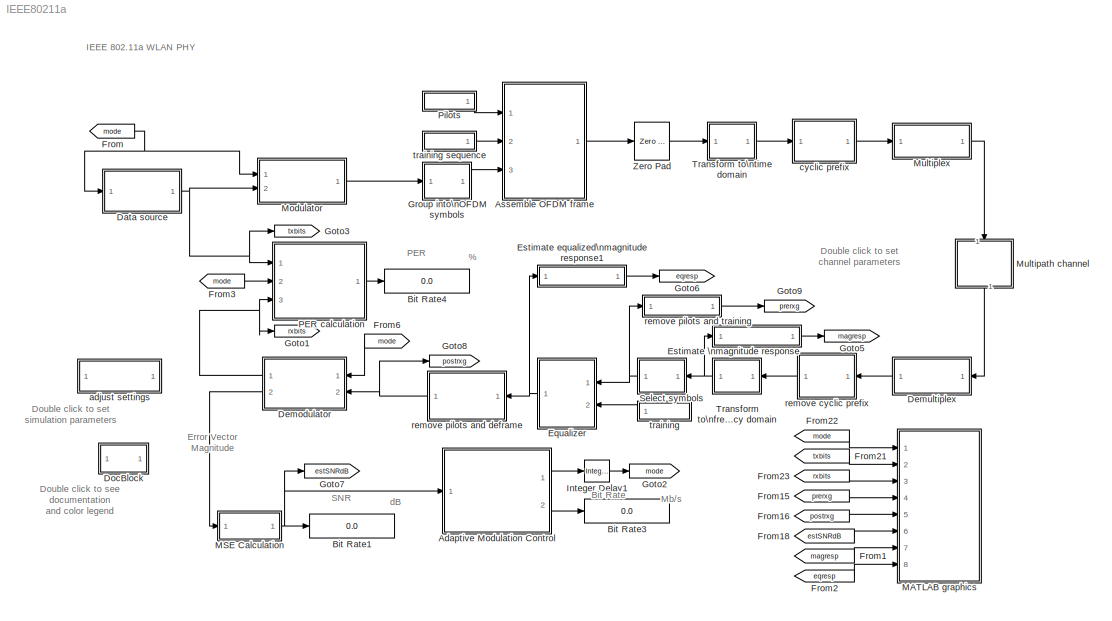
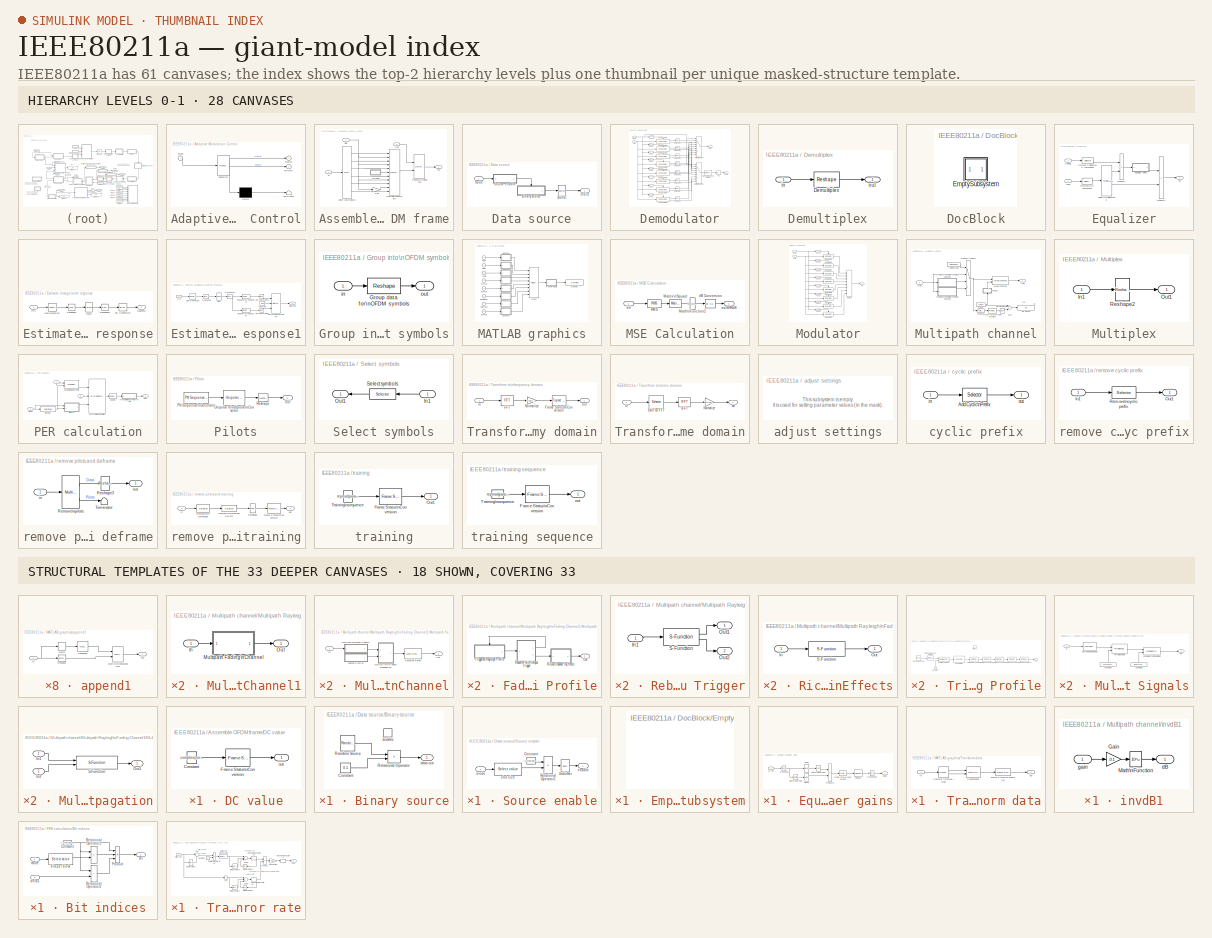
[diagram: thumbnail index - top-2 hierarchy levels (28 canvases) + 18 structural-template representatives of the remaining 33 canvases]
MODEL IEEE80211a
KIND model
CONFIG PreLoadFcn = load IEEE80211a_init;
BLOCK [SubSystem] Adaptive Modulation Control
  ErrorFcn = Stateflow.Translate.translate
  PermitHierarchicalResolution = ExplicitOnly
  Ports = [1, 2]
  RequestExecContextInheritance = off
  SFBlockType = Chart
  SID = 1
  TreatAsAtomicUnit = on
BLOCK [Demux] Adaptive Modulation Control/ Demux 
  Outputs = 1
  Ports = [1, 1]
  SID = 1::8
BLOCK [S-Function] Adaptive Modulation Control/ SFunction 
  EnableBusSupport = off
  FunctionName = sf_sfun
  Parameters = hyst,thres
  PortCounts = [1 3]
  Ports = [1, 3]
  SFcnIsStateOwnerBlock = off
  SFunctionDeploymentMode = off
  SID = 1::7
  Tag = Stateflow S-Function 1
BLOCK [Terminator] Adaptive Modulation Control/ Terminator 
  SID = 1::9
BLOCK [Outport] Adaptive Modulation Control/bitRate
  IconDisplay = Port number
  Port = 2
  SID = 1::6
BLOCK [Outport] Adaptive Modulation Control/modIdx
  IconDisplay = Port number
  SID = 1::5
BLOCK [Inport] Adaptive Modulation Control/snrEst
  IconDisplay = Port number
  SID = 1::1
BLOCK [SubSystem] Assemble OFDM frame
  Ports = [3, 1]
  RequestExecContextInheritance = off
  SID = 2
BLOCK [Reference] Assemble OFDM frame/Assemble\nSubcarriers  REF=simulink/Math\nOperations/Matrix\nConcatenation
  Ports = [11, 1]
  SID = 6
  SourceBlock = simulink/Math\nOperations/Matrix\nConcatenation
  SourceProductBaseCode = SL
  SourceProductName = Simulink
  SourceType = Matrix Concatenation
  catMethod = Vertical
  numInports = 11
BLOCK [SubSystem] Assemble OFDM frame/DC value
  Ports = [0, 1]
  RequestExecContextInheritance = off
  SID = 7
BLOCK [Constant] Assemble OFDM frame/DC value/Constant
  SID = 8
  Value = complex(zeros(1,params.OFDMSymPerFrame))
  VectorParams1D = off
BLOCK [Reference] Assemble OFDM frame/DC value/Frame Status\nConversion  REF=dspsigattribs/Frame Status\nConversion
  Ports = [1, 1]
  SID = 9
  SourceBlock = dspsigattribs/Frame Status\nConversion
  SourceProductBaseCode = DS
  SourceProductName = DSP System Toolbox
  SourceType = Frame Status Conversion
  growRefPort = off
  outframe = Frame-based
BLOCK [Outport] Assemble OFDM frame/DC value/out
  IconDisplay = Port number
  SID = 10
BLOCK [Gain] Assemble OFDM frame/Gain
  Gain = -1
  SID = 11
BLOCK [Reference] Assemble OFDM frame/Prepend\ntraining seq  REF=simulink/Math\nOperations/Matrix\nConcatenation
  Ports = [2, 1]
  SID = 12
  SourceBlock = simulink/Math\nOperations/Matrix\nConcatenation
  SourceProductBaseCode = SL
  SourceProductName = Simulink
  SourceType = Matrix Concatenation
  catMethod = Horizontal
  numInports = 2
BLOCK [Reference] Assemble OFDM frame/Select data\nblocks  REF=dspindex/Multiport\nSelector
  Ports = [1, 6]
  SID = 13
  SourceBlock = dspindex/Multiport\nSelector
  SourceProductBaseCode = DS
  SourceProductName = DSP System Toolbox
  SourceType = Multiport Selector
  idxCellArray = {1:5, 6:18, 19:24, 25:30, 31:43, 44:48}
  idxErrMode = Clip Index
  rowsOrCols = Rows
BLOCK [Inport] Assemble OFDM frame/in
  IconDisplay = Port number
  Port = 3
  SID = 5
BLOCK [Outport] Assemble OFDM frame/out
  IconDisplay = Port number
  SID = 14
BLOCK [Inport] Assemble OFDM frame/pilot
  IconDisplay = Port number
  SID = 3
BLOCK [Inport] Assemble OFDM frame/train
  IconDisplay = Port number
  Port = 2
  SID = 4
BLOCK [Display] Bit Rate1
  Decimation = 1
  Ports = [1]
  SID = 15
BLOCK [Display] Bit Rate3
  Decimation = 1
  Ports = [1]
  SID = 16
BLOCK [Display] Bit Rate4
  Decimation = 1
  Ports = [1]
  SID = 17
BLOCK [SubSystem] Data source
  Ports = [1, 1]
  RequestExecContextInheritance = off
  SID = 18
BLOCK [SubSystem] Data source/Binary source
  Ports = [0, 1, 1]
  RequestExecContextInheritance = off
  SID = 20
  TreatAsAtomicUnit = on
BLOCK [Constant] Data source/Binary source/Constant
  SID = 22
  Value = 0.5
BLOCK [EnablePort] Data source/Binary source/Enable
  Ports = []
  SID = 21
BLOCK [Reference] Data source/Binary source/Random Source  REF=dspsrcs4/Random\nSource
  CltLength = 12
  DataType = Double
  Diagnostics = AllowInheritedTsInSrc
  Inherit = off
  Max = 1
  Mean = 0
  Min = 0
  NormMethod = Ziggurat
  OutComplex = Real
  Ports = [0, 1]
  RepMode = Specify seed
  SID = 23
  SampFrame = samp_per_frame
  SampMode = Discrete
  SampTime = sample_time
  Seed = 61
  SourceBlock = dspsrcs4/Random\nSource
  SourceProductBaseCode = DS
  SourceProductName = DSP System Toolbox
  SourceType = Random Source
  SrcType = Uniform
  Var = 1
BLOCK [RelationalOperator] Data source/Binary source/Relational Operator
  Operator = >
  OutDataTypeStr = float('double')
  Ports = [2, 1]
  SID = 24
BLOCK [Outport] Data source/Binary source/data out
  IconDisplay = Port number
  InitialOutput = 0
  OutputWhenDisabled = reset
  SID = 25
BLOCK [Reference] Data source/Buffer  REF=dspbuff3/Buffer
  N = params.maxBitsPerBlock
  Ports = [1, 1]
  SID = 26
  SourceBlock = dspbuff3/Buffer
  SourceProductBaseCode = DS
  SourceProductName = DSP System Toolbox
  SourceType = Buffer
  V = 0
  ic = 0
BLOCK [SubSystem] Data source/Source enable
  Ports = [1, 1]
  RequestExecContextInheritance = off
  SID = 27
BLOCK [Constant] Data source/Source enable/Constant
  SID = 29
  Value = (1:max(params.nS)).'
BLOCK [RelationalOperator] Data source/Source enable/Relational Operator1
  Operator = <=
  OutDataTypeStr = float('double')
  Ports = [2, 1]
  SID = 30
BLOCK [Reference] Data source/Source enable/Unbuffer  REF=dspbuff3/Unbuffer
  Ports = [1, 1]
  SID = 31
  SourceBlock = dspbuff3/Unbuffer
  SourceProductBaseCode = DS
  SourceProductName = DSP System Toolbox
  SourceType = Unbuffer
  ic = 0
BLOCK [Outport] Data source/Source enable/enable
  IconDisplay = Port number
  SID = 33
BLOCK [Inport] Data source/Source enable/mode
  IconDisplay = Port number
  SID = 28
BLOCK [Reference] Data source/Source enable/slot size  REF=IEEE80211a_lib/Select value
  Ports = [1, 1]
  SID = 32
  SourceBlock = IEEE80211a_lib/Select value
  vector = params.nS.'
BLOCK [Inport] Data source/mode
  IconDisplay = Port number
  SID = 19
BLOCK [Outport] Data source/tx bits
  IconDisplay = Port number
  SID = 34
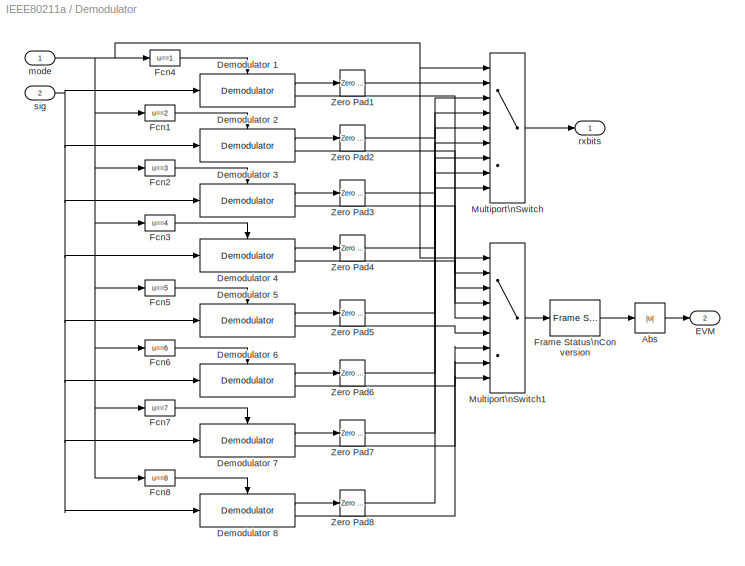
BLOCK [SubSystem] Demodulator
  Ports = [2, 2]
  RequestExecContextInheritance = off
  SID = 35
BLOCK [Abs] Demodulator/Abs
  SID = 38
BLOCK [Reference] Demodulator/Demodulator 1  REF=IEEE80211a_lib/Demodulator
  Ports = [1, 2, 1]
  SID = 39
  SourceBlock = IEEE80211a_lib/Demodulator
  SourceType = QAM Demodulator-Decoder.
  code = 1/2
  modulation = BPSK
  numSymbols = 960
  punctureVector = [1]
  trellisStructure = poly2trellis(7, [171 133])
  vtbd = 34
BLOCK [Reference] Demodulator/Demodulator 2  REF=IEEE80211a_lib/Demodulator
  Ports = [1, 2, 1]
  SID = 40
  SourceBlock = IEEE80211a_lib/Demodulator
  SourceType = QAM Demodulator-Decoder.
  code = 3/4
  modulation = BPSK
  numSymbols = 960
  punctureVector = [1 1 1 0 0 1].'
  trellisStructure = poly2trellis(7, [171 133])
  vtbd = 34
BLOCK [Reference] Demodulator/Demodulator 3  REF=IEEE80211a_lib/Demodulator
  Ports = [1, 2, 1]
  SID = 41
  SourceBlock = IEEE80211a_lib/Demodulator
  SourceType = QAM Demodulator-Decoder.
  code = 1/2
  modulation = QPSK
  numSymbols = 960
  punctureVector = [1]
  trellisStructure = poly2trellis(7, [171 133])
  vtbd = 34
BLOCK [Reference] Demodulator/Demodulator 4  REF=IEEE80211a_lib/Demodulator
  Ports = [1, 2, 1]
  SID = 42
  SourceBlock = IEEE80211a_lib/Demodulator
  SourceType = QAM Demodulator-Decoder.
  code = 3/4
  modulation = QPSK
  numSymbols = 960
  punctureVector = [1 1 1 0 0 1].'
  trellisStructure = poly2trellis(7, [171 133])
  vtbd = 34
BLOCK [Reference] Demodulator/Demodulator 5  REF=IEEE80211a_lib/Demodulator
  Ports = [1, 2, 1]
  SID = 43
  SourceBlock = IEEE80211a_lib/Demodulator
  SourceType = QAM Demodulator-Decoder.
  code = 1/2
  modulation = 16-QAM
  numSymbols = 960
  punctureVector = [1]
  trellisStructure = poly2trellis(7, [171 133])
  vtbd = 34
BLOCK [Reference] Demodulator/Demodulator 6  REF=IEEE80211a_lib/Demodulator
  Ports = [1, 2, 1]
  SID = 44
  SourceBlock = IEEE80211a_lib/Demodulator
  SourceType = QAM Demodulator-Decoder.
  code = 3/4
  modulation = 16-QAM
  numSymbols = 960
  punctureVector = [1 1 1 0 0 1].'
  trellisStructure = poly2trellis(7, [171 133])
  vtbd = 34
BLOCK [Reference] Demodulator/Demodulator 7  REF=IEEE80211a_lib/Demodulator
  Ports = [1, 2, 1]
  SID = 45
  SourceBlock = IEEE80211a_lib/Demodulator
  SourceType = QAM Demodulator-Decoder.
  code = 2/3
  modulation = 64-QAM
  numSymbols = 960
  punctureVector = [1 1 1 0].'
  trellisStructure = poly2trellis(7, [133 171])
  vtbd = 34
BLOCK [Reference] Demodulator/Demodulator 8  REF=IEEE80211a_lib/Demodulator
  Ports = [1, 2, 1]
  SID = 46
  SourceBlock = IEEE80211a_lib/Demodulator
  SourceType = QAM Demodulator-Decoder.
  code = 3/4
  modulation = 64-QAM
  numSymbols = 960
  punctureVector = [1 1 1 0 0 1].'
  trellisStructure = poly2trellis(7, [133 171])
  vtbd = 34
BLOCK [Outport] Demodulator/EVM
  IconDisplay = Port number
  Port = 2
  SID = 67
BLOCK [Fcn] Demodulator/Fcn1
  Expr = u==2
  SID = 47
BLOCK [Fcn] Demodulator/Fcn2
  Expr = u==3
  SID = 48
BLOCK [Fcn] Demodulator/Fcn3
  Expr = u==4
  SID = 49
BLOCK [Fcn] Demodulator/Fcn4
  Expr = u==1
  SID = 50
BLOCK [Fcn] Demodulator/Fcn5
  Expr = u==5
  SID = 51
BLOCK [Fcn] Demodulator/Fcn6
  Expr = u==6
  SID = 52
BLOCK [Fcn] Demodulator/Fcn7
  Expr = u==7
  SID = 53
BLOCK [Fcn] Demodulator/Fcn8
  Expr = u==8
  SID = 54
BLOCK [Reference] Demodulator/Frame Status\nConversion  REF=dspsigattribs/Frame Status\nConversion
  Ports = [1, 1]
  SID = 55
  SourceBlock = dspsigattribs/Frame Status\nConversion
  SourceProductBaseCode = DS
  SourceProductName = DSP System Toolbox
  SourceType = Frame Status Conversion
  growRefPort = off
  outframe = Sample-based
BLOCK [MultiPortSwitch] Demodulator/Multiport\nSwitch
  InputSameDT = off
  Inputs = 8
  Ports = [9, 1]
  SID = 56
BLOCK [MultiPortSwitch] Demodulator/Multiport\nSwitch1
  InputSameDT = off
  Inputs = 8
  Ports = [9, 1]
  SID = 57
BLOCK [Reference] Demodulator/Zero Pad1  REF=dspsigops/Zero Pad
  AttributesFormatString = \\n
  Ports = [1, 1]
  SID = 58
  SourceBlock = dspsigops/Zero Pad
  SourceProductBaseCode = DS
  SourceProductName = DSP System Toolbox
  SourceType = Zero Pad
  numOutCols = 1
  numOutRows = 4320
  padNumOutColsSpecMethod = User-specified
  padNumOutRowsSpecMethod = User-specified
  padSigAt = End
  trunc_flag = None
  zpadAlong = Columns
BLOCK [Reference] Demodulator/Zero Pad2  REF=dspsigops/Zero Pad
  AttributesFormatString = \\n
  Ports = [1, 1]
  SID = 59
  SourceBlock = dspsigops/Zero Pad
  SourceProductBaseCode = DS
  SourceProductName = DSP System Toolbox
  SourceType = Zero Pad
  numOutCols = 1
  numOutRows = 4320
  padNumOutColsSpecMethod = User-specified
  padNumOutRowsSpecMethod = User-specified
  padSigAt = End
  trunc_flag = None
  zpadAlong = Columns
BLOCK [Reference] Demodulator/Zero Pad3  REF=dspsigops/Zero Pad
  AttributesFormatString = \\n
  Ports = [1, 1]
  SID = 60
  SourceBlock = dspsigops/Zero Pad
  SourceProductBaseCode = DS
  SourceProductName = DSP System Toolbox
  SourceType = Zero Pad
  numOutCols = 1
  numOutRows = 4320
  padNumOutColsSpecMethod = User-specified
  padNumOutRowsSpecMethod = User-specified
  padSigAt = End
  trunc_flag = None
  zpadAlong = Columns
BLOCK [Reference] Demodulator/Zero Pad4  REF=dspsigops/Zero Pad
  AttributesFormatString = \\n
  Ports = [1, 1]
  SID = 61
  SourceBlock = dspsigops/Zero Pad
  SourceProductBaseCode = DS
  SourceProductName = DSP System Toolbox
  SourceType = Zero Pad
  numOutCols = 1
  numOutRows = 4320
  padNumOutColsSpecMethod = User-specified
  padNumOutRowsSpecMethod = User-specified
  padSigAt = End
  trunc_flag = None
  zpadAlong = Columns
BLOCK [Reference] Demodulator/Zero Pad5  REF=dspsigops/Zero Pad
  AttributesFormatString = \\n
  Ports = [1, 1]
  SID = 62
  SourceBlock = dspsigops/Zero Pad
  SourceProductBaseCode = DS
  SourceProductName = DSP System Toolbox
  SourceType = Zero Pad
  numOutCols = 1
  numOutRows = 4320
  padNumOutColsSpecMethod = User-specified
  padNumOutRowsSpecMethod = User-specified
  padSigAt = End
  trunc_flag = None
  zpadAlong = Columns
BLOCK [Reference] Demodulator/Zero Pad6  REF=dspsigops/Zero Pad
  AttributesFormatString = \\n
  Ports = [1, 1]
  SID = 63
  SourceBlock = dspsigops/Zero Pad
  SourceProductBaseCode = DS
  SourceProductName = DSP System Toolbox
  SourceType = Zero Pad
  numOutCols = 1
  numOutRows = 4320
  padNumOutColsSpecMethod = User-specified
  padNumOutRowsSpecMethod = User-specified
  padSigAt = End
  trunc_flag = None
  zpadAlong = Columns
BLOCK [Reference] Demodulator/Zero Pad7  REF=dspsigops/Zero Pad
  AttributesFormatString = \\n
  Ports = [1, 1]
  SID = 64
  SourceBlock = dspsigops/Zero Pad
  SourceProductBaseCode = DS
  SourceProductName = DSP System Toolbox
  SourceType = Zero Pad
  numOutCols = 1
  numOutRows = 4320
  padNumOutColsSpecMethod = User-specified
  padNumOutRowsSpecMethod = User-specified
  padSigAt = End
  trunc_flag = None
  zpadAlong = Columns
BLOCK [Reference] Demodulator/Zero Pad8  REF=dspsigops/Zero Pad
  AttributesFormatString = \\n
  Ports = [1, 1]
  SID = 65
  SourceBlock = dspsigops/Zero Pad
  SourceProductBaseCode = DS
  SourceProductName = DSP System Toolbox
  SourceType = Zero Pad
  numOutCols = 1
  numOutRows = 4320
  padNumOutColsSpecMethod = User-specified
  padNumOutRowsSpecMethod = User-specified
  padSigAt = End
  trunc_flag = None
  zpadAlong = Columns
BLOCK [Inport] Demodulator/mode
  IconDisplay = Port number
  SID = 36
BLOCK [Outport] Demodulator/rxbits
  IconDisplay = Port number
  SID = 66
BLOCK [Inport] Demodulator/sig
  IconDisplay = Port number
  Port = 2
  SID = 37
BLOCK [SubSystem] Demultiplex
  Ports = [1, 1]
  RequestExecContextInheritance = off
  SID = 68
BLOCK [Reference] Demultiplex/Demultiplex  REF=simulink/Math\nOperations/Reshape
  OutputDimensionality = Customize
  OutputDimensions = [params.NFFT2  params.OFDMTotSymPerFrame]
  Ports = [1, 1]
  SID = 70
  SourceBlock = simulink/Math\nOperations/Reshape
  SourceProductBaseCode = SL
  SourceProductName = Simulink
  SourceType = Reshape
BLOCK [Inport] Demultiplex/in
  IconDisplay = Port number
  SID = 69
BLOCK [Outport] Demultiplex/out
  IconDisplay = Port number
  SID = 71
BLOCK [SubSystem] DocBlock
  CopyFcn = docblock('breaklink',gcb);
  DeleteFcn = docblock('close_document',gcb);
  OpenFcn = docblock('edit_document',gcb);
  Ports = []
  PreSaveFcn = docblock('save_document',gcb);
  RequestExecContextInheritance = off
  SID = 72
BLOCK [SubSystem] DocBlock/EmptySubsystem
  Ports = []
  RequestExecContextInheritance = off
  SID = 73
BLOCK [SubSystem] Equalizer
  Ports = [2, 1]
  RequestExecContextInheritance = off
  SID = 74
BLOCK [SubSystem] Equalizer/Equalizer gains
  Ports = [1, 1]
  RequestExecContextInheritance = off
  SID = 77
BLOCK [Reference] Equalizer/Equalizer gains/Frame Status\nConversion  REF=dspsigattribs/Frame Status\nConversion
  Ports = [1, 1]
  SID = 79
  SourceBlock = dspsigattribs/Frame Status\nConversion
  SourceProductBaseCode = DS
  SourceProductName = DSP System Toolbox
  SourceType = Frame Status Conversion
  growRefPort = off
  outframe = Frame-based
BLOCK [Math] Equalizer/Equalizer gains/Math\nFunction
  Operator = magnitude^2
  Ports = [1, 1]
  SID = 80
BLOCK [Math] Equalizer/Equalizer gains/Math\nFunction1
  Operator = conj
  Ports = [1, 1]
  SID = 81
BLOCK [Reference] Equalizer/Equalizer gains/Mean  REF=dspstat3/Mean
  Ports = [1, 1]
  SID = 82
  SourceBlock = dspstat3/Mean
  SourceProductBaseCode = DS
  SourceProductName = DSP System Toolbox
  SourceType = Mean
  reset_popup = None
  run = off
BLOCK [Reference] Equalizer/Equalizer gains/Mean1  REF=dspstat3/Mean
  Ports = [1, 1]
  SID = 83
  SourceBlock = dspstat3/Mean
  SourceProductBaseCode = DS
  SourceProductName = DSP System Toolbox
  SourceType = Mean
  reset_popup = None
  run = off
BLOCK [Product] Equalizer/Equalizer gains/Product3
  InputSameDT = off
  Inputs = */
  Ports = [2, 1]
  RndMeth = Floor
  SID = 84
BLOCK [Reference] Equalizer/Equalizer gains/Repeat  REF=dspsigops/Repeat
  N = params.OFDMSymPerFrame
  Ports = [1, 1]
  SID = 85
  SourceBlock = dspsigops/Repeat
  SourceProductBaseCode = DS
  SourceProductName = DSP System Toolbox
  SourceType = Repeat
  ic = 0
  mode = Maintain input frame rate
BLOCK [Reference] Equalizer/Equalizer gains/Transpose  REF=dspmtrx3/Transpose
  Hermitian = off
  Ports = [1, 1]
  SID = 86
  SourceBlock = dspmtrx3/Transpose
  SourceProductBaseCode = DS
  SourceProductName = DSP System Toolbox
  SourceType = Transpose
BLOCK [Reference] Equalizer/Equalizer gains/Transpose1  REF=dspmtrx3/Transpose
  Hermitian = off
  Ports = [1, 1]
  SID = 87
  SourceBlock = dspmtrx3/Transpose
  SourceProductBaseCode = DS
  SourceProductName = DSP System Toolbox
  SourceType = Transpose
BLOCK [Inport] Equalizer/Equalizer gains/ch est
  IconDisplay = Port number
  SID = 78
BLOCK [Outport] Equalizer/Equalizer gains/gains
  IconDisplay = Port number
  SID = 88
BLOCK [Product] Equalizer/Product1
  InputSameDT = off
  Inputs = /*
  Ports = [2, 1]
  RndMeth = Floor
  SID = 89
BLOCK [Product] Equalizer/Product2
  InputSameDT = off
  Inputs = **
  Ports = [2, 1]
  RndMeth = Floor
  SID = 90
BLOCK [Selector] Equalizer/Remove training\nDC component
  IndexOptions = Index vector (dialog),Select all
  Indices = [1:26 28:53],-1
  InputPortWidth = 53
  NumberOfDimensions = 2
  OutputSizes = 1
  Ports = [1, 1]
  SID = 92
BLOCK [Selector] Equalizer/Remove\nDC component
  IndexOptions = Index vector (dialog),Select all
  Indices = [1:26 28:53],-1
  InputPortWidth = 53
  NumberOfDimensions = 2
  OutputSizes = 1
  Ports = [1, 1]
  SID = 91
BLOCK [Reference] Equalizer/Select\ntraining//data  REF=dspindex/Multiport\nSelector
  Ports = [1, 2]
  SID = 93
  SourceBlock = dspindex/Multiport\nSelector
  SourceProductBaseCode = DS
  SourceProductName = DSP System Toolbox
  SourceType = Multiport Selector
  idxCellArray = {1:params.OFDMTrainPerFrame, params.OFDMTrainPerFrame+1:params.OFDMTotSymPerFrame}
  idxErrMode = Clip Index
  rowsOrCols = Columns
BLOCK [Outport] Equalizer/out
  IconDisplay = Port number
  SID = 94
BLOCK [Inport] Equalizer/rxsig
  IconDisplay = Port number
  SID = 75
BLOCK [Inport] Equalizer/trainsig
  IconDisplay = Port number
  Port = 2
  SID = 76
BLOCK [SubSystem] Estimate \nmagnitude response
  Ports = [1, 1]
  RequestExecContextInheritance = off
  SID = 96
BLOCK [Math] Estimate \nmagnitude response/Math\nFunction
  Operator = magnitude^2
  Ports = [1, 1]
  SID = 98
BLOCK [Reference] Estimate \nmagnitude response/Mean  REF=dspstat3/Mean
  Ports = [1, 1]
  SID = 99
  SourceBlock = dspstat3/Mean
  SourceProductBaseCode = DS
  SourceProductName = DSP System Toolbox
  SourceType = Mean
  reset_popup = None
  run = off
BLOCK [Reference] Estimate \nmagnitude response/Transpose  REF=dspmtrx3/Transpose
  Hermitian = off
  Ports = [1, 1]
  SID = 100
  SourceBlock = dspmtrx3/Transpose
  SourceProductBaseCode = DS
  SourceProductName = DSP System Toolbox
  SourceType = Transpose
BLOCK [Reference] Estimate \nmagnitude response/Transpose1  REF=dspmtrx3/Transpose
  Hermitian = off
  Ports = [1, 1]
  SID = 101
  SourceBlock = dspmtrx3/Transpose
  SourceProductBaseCode = DS
  SourceProductName = DSP System Toolbox
  SourceType = Transpose
BLOCK [Reference] Estimate \nmagnitude response/dB Conversion  REF=dspmathops/dB Conversion
  Ports = [1, 1]
  R = 1
  SID = 102
  SourceBlock = dspmathops/dB Conversion
  SourceProductBaseCode = DS
  SourceProductName = DSP System Toolbox
  SourceType = dB Conversion
  dBtype = dB
  fuzz = on
  intype = Power
BLOCK [Inport] Estimate \nmagnitude response/ffts
  IconDisplay = Port number
  SID = 97
BLOCK [Outport] Estimate \nmagnitude response/magresp
  IconDisplay = Port number
  SID = 103
BLOCK [SubSystem] Estimate equalized\nmagnitude response1
  Ports = [1, 1]
  RequestExecContextInheritance = off
  SID = 104
BLOCK [Constant] Estimate equalized\nmagnitude response1/Constant
  SID = 106
  Value = NaN
BLOCK [Math] Estimate equalized\nmagnitude response1/Math\nFunction
  Operator = magnitude^2
  Ports = [1, 1]
  SID = 107
BLOCK [Reference] Estimate equalized\nmagnitude response1/Matrix\nConcatenation  REF=simulink/Math\nOperations/Matrix\nConcatenation
  Ports = [3, 1]
  SID = 108
  SourceBlock = simulink/Math\nOperations/Matrix\nConcatenation
  SourceProductBaseCode = SL
  SourceProductName = Simulink
  SourceType = Matrix Concatenation
  catMethod = Vertical
  numInports = 3
BLOCK [Reference] Estimate equalized\nmagnitude response1/Mean  REF=dspstat3/Mean
  Ports = [1, 1]
  SID = 109
  SourceBlock = dspstat3/Mean
  SourceProductBaseCode = DS
  SourceProductName = DSP System Toolbox
  SourceType = Mean
  reset_popup = None
  run = off
BLOCK [Reference] Estimate equalized\nmagnitude response1/Transpose  REF=dspmtrx3/Transpose
  Hermitian = off
  Ports = [1, 1]
  SID = 110
  SourceBlock = dspmtrx3/Transpose
  SourceProductBaseCode = DS
  SourceProductName = DSP System Toolbox
  SourceType = Transpose
BLOCK [Reference] Estimate equalized\nmagnitude response1/Transpose1  REF=dspmtrx3/Transpose
  Hermitian = off
  Ports = [1, 1]
  SID = 111
  SourceBlock = dspmtrx3/Transpose
  SourceProductBaseCode = DS
  SourceProductName = DSP System Toolbox
  SourceType = Transpose
BLOCK [Reference] Estimate equalized\nmagnitude response1/dB Conversion1  REF=dspmathops/dB Conversion
  Ports = [1, 1]
  R = 1
  SID = 112
  SourceBlock = dspmathops/dB Conversion
  SourceProductBaseCode = DS
  SourceProductName = DSP System Toolbox
  SourceType = dB Conversion
  dBtype = dB
  fuzz = on
  intype = Power
BLOCK [Reference] Estimate equalized\nmagnitude response1/dB Conversion2  REF=dspmathops/dB Conversion
  Ports = [1, 1]
  R = 1
  SID = 113
  SourceBlock = dspmathops/dB Conversion
  SourceProductBaseCode = DS
  SourceProductName = DSP System Toolbox
  SourceType = dB Conversion
  dBtype = dB
  fuzz = on
  intype = Power
BLOCK [Inport] Estimate equalized\nmagnitude response1/ffts
  IconDisplay = Port number
  SID = 105
BLOCK [Outport] Estimate equalized\nmagnitude response1/magresp
  IconDisplay = Port number
  SID = 116
BLOCK [Selector] Estimate equalized\nmagnitude response1/negative\nfrequencies
  IndexOptions = Index vector (dialog)
  Indices = [1:params.NST/2]
  InputPortWidth = params.NST
  OutputSizes = 1
  Ports = [1, 1]
  SID = 114
BLOCK [Selector] Estimate equalized\nmagnitude response1/positive\nfrequencies
  IndexOptions = Index vector (dialog)
  Indices = params.NST/2+1:params.NST
  InputPortWidth = params.NST
  OutputSizes = 1
  Ports = [1, 1]
  SID = 115
BLOCK [From] From
  CloseFcn = tagdialog Close
  GotoTag = mode
  SID = 117
BLOCK [From] From1
  CloseFcn = tagdialog Close
  GotoTag = magresp
  SID = 118
BLOCK [From] From15
  CloseFcn = tagdialog Close
  GotoTag = prerxg
  SID = 119
BLOCK [From] From16
  CloseFcn = tagdialog Close
  GotoTag = postrxg
  SID = 120
BLOCK [From] From18
  CloseFcn = tagdialog Close
  GotoTag = estSNRdB
  SID = 121
BLOCK [From] From2
  CloseFcn = tagdialog Close
  GotoTag = eqresp
  SID = 122
BLOCK [From] From21
  CloseFcn = tagdialog Close
  GotoTag = txbits
  SID = 123
BLOCK [From] From22
  CloseFcn = tagdialog Close
  GotoTag = mode
  SID = 124
BLOCK [From] From23
  CloseFcn = tagdialog Close
  GotoTag = rxbits
  SID = 125
BLOCK [From] From3
  CloseFcn = tagdialog Close
  GotoTag = mode
  SID = 126
BLOCK [From] From6
  CloseFcn = tagdialog Close
  GotoTag = mode
  SID = 127
BLOCK [Goto] Goto1
  GotoTag = rxbits
  SID = 128
BLOCK [Goto] Goto2
  GotoTag = mode
  SID = 129
BLOCK [Goto] Goto3
  GotoTag = txbits
  SID = 130
BLOCK [Goto] Goto5
  GotoTag = magresp
  SID = 131
BLOCK [Goto] Goto6
  GotoTag = eqresp
  SID = 132
BLOCK [Goto] Goto7
  GotoTag = estSNRdB
  SID = 133
BLOCK [Goto] Goto8
  GotoTag = postrxg
  SID = 134
BLOCK [Goto] Goto9
  GotoTag = prerxg
  SID = 135
BLOCK [SubSystem] Group into\nOFDM symbols
  Ports = [1, 1]
  RequestExecContextInheritance = off
  SID = 136
BLOCK [Reference] Group into\nOFDM symbols/Group data for\nOFDM symbols   REF=simulink/Math\nOperations/Reshape
  OutputDimensionality = Customize
  OutputDimensions = [params.NSD params.OFDMSymPerFrame]
  Ports = [1, 1]
  SID = 138
  SourceBlock = simulink/Math\nOperations/Reshape
  SourceProductBaseCode = SL
  SourceProductName = Simulink
  SourceType = Reshape
BLOCK [Inport] Group into\nOFDM symbols/in
  IconDisplay = Port number
  SID = 137
BLOCK [Outport] Group into\nOFDM symbols/out
  IconDisplay = Port number
  SID = 139
BLOCK [Reference] Integer Delay1  REF=dspsigops/Integer Delay
  AttributesFormatString = \\n
  Ports = [1, 1]
  SID = 140
  SourceBlock = dspsigops/Integer Delay
  SourceProductBaseCode = DS
  SourceProductName = DSP System Toolbox
  SourceType = Integer Delay
  delay = 1
  ic = 1
  reset_popup = None
BLOCK [SubSystem] MATLAB graphics
  OpenFcn = IEEE80211a_open_graphics(gcb, 0);
  Ports = [8]
  RequestExecContextInheritance = off
  SID = 141
BLOCK [SubSystem] MATLAB graphics/Transform data
  Ports = [1, 1]
  RequestExecContextInheritance = off
  SID = 150
BLOCK [ComplexToRealImag] MATLAB graphics/Transform data/Complex to\nReal-Imag
  Ports = [1, 2]
  SID = 152
BLOCK [Reference] MATLAB graphics/Transform data/Concatenate  REF=simulink/Math\nOperations/Matrix\nConcatenation
  Ports = [2, 1]
  SID = 153
  SourceBlock = simulink/Math\nOperations/Matrix\nConcatenation
  SourceProductBaseCode = SL
  SourceProductName = Simulink
  SourceType = Matrix Concatenation
  catMethod = Horizontal
  numInports = 2
BLOCK [Reference] MATLAB graphics/Transform data/Frame Status\nConversion  REF=dspsigattribs/Frame Status\nConversion
  Ports = [1, 1]
  SID = 154
  SourceBlock = dspsigattribs/Frame Status\nConversion
  SourceProductBaseCode = DS
  SourceProductName = DSP System Toolbox
  SourceType = Frame Status Conversion
  growRefPort = off
  outframe = Sample-based
BLOCK [Inport] MATLAB graphics/Transform data/in
  IconDisplay = Port number
  SID = 151
BLOCK [Outport] MATLAB graphics/Transform data/out
  IconDisplay = Port number
  SID = 155
BLOCK [SubSystem] MATLAB graphics/append1
  Ports = [1, 1]
  RequestExecContextInheritance = off
  SID = 156
BLOCK [Reference] MATLAB graphics/append1/Matrix\nConcatenation1  REF=simulink/Math\nOperations/Matrix\nConcatenation
  Ports = [2, 1]
  SID = 158
  SourceBlock = simulink/Math\nOperations/Matrix\nConcatenation
  SourceProductBaseCode = SL
  SourceProductName = Simulink
  SourceType = Matrix Concatenation
  catMethod = Vertical
  numInports = 2
BLOCK [Reference] MATLAB graphics/append1/Reshape  REF=simulink/Math\nOperations/Reshape
  OutputDimensionality = Column vector
  OutputDimensions = [1,1]
  Ports = [1, 1]
  SID = 159
  SourceBlock = simulink/Math\nOperations/Reshape
  SourceProductBaseCode = SL
  SourceProductName = Simulink
  SourceType = Reshape
BLOCK [Reference] MATLAB graphics/append1/Transpose  REF=dspmtrx3/Transpose
  AttributesFormatString = \\n
  Hermitian = off
  Ports = [1, 1]
  SID = 160
  SourceBlock = dspmtrx3/Transpose
  SourceProductBaseCode = DS
  SourceProductName = DSP System Toolbox
  SourceType = Transpose
BLOCK [Width] MATLAB graphics/append1/Width
  SID = 161
BLOCK [Inport] MATLAB graphics/append1/in
  IconDisplay = Port number
  SID = 157
BLOCK [Outport] MATLAB graphics/append1/out
  IconDisplay = Port number
  SID = 162
BLOCK [SubSystem] MATLAB graphics/append2
  Ports = [1, 1]
  RequestExecContextInheritance = off
  SID = 163
BLOCK [Reference] MATLAB graphics/append2/Matrix\nConcatenation1  REF=simulink/Math\nOperations/Matrix\nConcatenation
  Ports = [2, 1]
  SID = 165
  SourceBlock = simulink/Math\nOperations/Matrix\nConcatenation
  SourceProductBaseCode = SL
  SourceProductName = Simulink
  SourceType = Matrix Concatenation
  catMethod = Vertical
  numInports = 2
BLOCK [Reference] MATLAB graphics/append2/Reshape  REF=simulink/Math\nOperations/Reshape
  OutputDimensionality = Column vector
  OutputDimensions = [1,1]
  Ports = [1, 1]
  SID = 166
  SourceBlock = simulink/Math\nOperations/Reshape
  SourceProductBaseCode = SL
  SourceProductName = Simulink
  SourceType = Reshape
BLOCK [Reference] MATLAB graphics/append2/Transpose  REF=dspmtrx3/Transpose
  AttributesFormatString = \\n
  Hermitian = off
  Ports = [1, 1]
  SID = 167
  SourceBlock = dspmtrx3/Transpose
  SourceProductBaseCode = DS
  SourceProductName = DSP System Toolbox
  SourceType = Transpose
BLOCK [Width] MATLAB graphics/append2/Width
  SID = 168
BLOCK [Inport] MATLAB graphics/append2/in
  IconDisplay = Port number
  SID = 164
BLOCK [Outport] MATLAB graphics/append2/out
  IconDisplay = Port number
  SID = 169
BLOCK [SubSystem] MATLAB graphics/append3
  Ports = [1, 1]
  RequestExecContextInheritance = off
  SID = 170
BLOCK [Reference] MATLAB graphics/append3/Matrix\nConcatenation1  REF=simulink/Math\nOperations/Matrix\nConcatenation
  Ports = [2, 1]
  SID = 172
  SourceBlock = simulink/Math\nOperations/Matrix\nConcatenation
  SourceProductBaseCode = SL
  SourceProductName = Simulink
  SourceType = Matrix Concatenation
  catMethod = Vertical
  numInports = 2
BLOCK [Reference] MATLAB graphics/append3/Reshape  REF=simulink/Math\nOperations/Reshape
  OutputDimensionality = Column vector
  OutputDimensions = [1,1]
  Ports = [1, 1]
  SID = 173
  SourceBlock = simulink/Math\nOperations/Reshape
  SourceProductBaseCode = SL
  SourceProductName = Simulink
  SourceType = Reshape
BLOCK [Reference] MATLAB graphics/append3/Transpose  REF=dspmtrx3/Transpose
  AttributesFormatString = \\n
  Hermitian = off
  Ports = [1, 1]
  SID = 174
  SourceBlock = dspmtrx3/Transpose
  SourceProductBaseCode = DS
  SourceProductName = DSP System Toolbox
  SourceType = Transpose
BLOCK [Width] MATLAB graphics/append3/Width
  SID = 175
BLOCK [Inport] MATLAB graphics/append3/in
  IconDisplay = Port number
  SID = 171
BLOCK [Outport] MATLAB graphics/append3/out
  IconDisplay = Port number
  SID = 176
BLOCK [SubSystem] MATLAB graphics/append5
  Ports = [1, 1]
  RequestExecContextInheritance = off
  SID = 177
BLOCK [Reference] MATLAB graphics/append5/Matrix\nConcatenation1  REF=simulink/Math\nOperations/Matrix\nConcatenation
  Ports = [2, 1]
  SID = 179
  SourceBlock = simulink/Math\nOperations/Matrix\nConcatenation
  SourceProductBaseCode = SL
  SourceProductName = Simulink
  SourceType = Matrix Concatenation
  catMethod = Vertical
  numInports = 2
BLOCK [Reference] MATLAB graphics/append5/Reshape  REF=simulink/Math\nOperations/Reshape
  OutputDimensionality = Column vector
  OutputDimensions = [1,1]
  Ports = [1, 1]
  SID = 180
  SourceBlock = simulink/Math\nOperations/Reshape
  SourceProductBaseCode = SL
  SourceProductName = Simulink
  SourceType = Reshape
BLOCK [Reference] MATLAB graphics/append5/Transpose  REF=dspmtrx3/Transpose
  AttributesFormatString = \\n
  Hermitian = off
  Ports = [1, 1]
  SID = 181
  SourceBlock = dspmtrx3/Transpose
  SourceProductBaseCode = DS
  SourceProductName = DSP System Toolbox
  SourceType = Transpose
BLOCK [Width] MATLAB graphics/append5/Width
  SID = 182
BLOCK [Inport] MATLAB graphics/append5/in
  IconDisplay = Port number
  SID = 178
BLOCK [Outport] MATLAB graphics/append5/out
  IconDisplay = Port number
  SID = 183
BLOCK [SubSystem] MATLAB graphics/append6
  Ports = [1, 1]
  RequestExecContextInheritance = off
  SID = 184
BLOCK [Reference] MATLAB graphics/append6/Matrix\nConcatenation1  REF=simulink/Math\nOperations/Matrix\nConcatenation
  Ports = [2, 1]
  SID = 186
  SourceBlock = simulink/Math\nOperations/Matrix\nConcatenation
  SourceProductBaseCode = SL
  SourceProductName = Simulink
  SourceType = Matrix Concatenation
  catMethod = Vertical
  numInports = 2
BLOCK [Reference] MATLAB graphics/append6/Reshape  REF=simulink/Math\nOperations/Reshape
  OutputDimensionality = Column vector
  OutputDimensions = [1,1]
  Ports = [1, 1]
  SID = 187
  SourceBlock = simulink/Math\nOperations/Reshape
  SourceProductBaseCode = SL
  SourceProductName = Simulink
  SourceType = Reshape
BLOCK [Reference] MATLAB graphics/append6/Transpose  REF=dspmtrx3/Transpose
  AttributesFormatString = \\n
  Hermitian = off
  Ports = [1, 1]
  SID = 188
  SourceBlock = dspmtrx3/Transpose
  SourceProductBaseCode = DS
  SourceProductName = DSP System Toolbox
  SourceType = Transpose
BLOCK [Width] MATLAB graphics/append6/Width
  SID = 189
BLOCK [Inport] MATLAB graphics/append6/in
  IconDisplay = Port number
  SID = 185
BLOCK [Outport] MATLAB graphics/append6/out
  IconDisplay = Port number
  SID = 190
BLOCK [SubSystem] MATLAB graphics/append7
  Ports = [1, 1]
  RequestExecContextInheritance = off
  SID = 191
BLOCK [Reference] MATLAB graphics/append7/Matrix\nConcatenation1  REF=simulink/Math\nOperations/Matrix\nConcatenation
  Ports = [2, 1]
  SID = 193
  SourceBlock = simulink/Math\nOperations/Matrix\nConcatenation
  SourceProductBaseCode = SL
  SourceProductName = Simulink
  SourceType = Matrix Concatenation
  catMethod = Vertical
  numInports = 2
BLOCK [Reference] MATLAB graphics/append7/Reshape  REF=simulink/Math\nOperations/Reshape
  OutputDimensionality = Column vector
  OutputDimensions = [1,1]
  Ports = [1, 1]
  SID = 194
  SourceBlock = simulink/Math\nOperations/Reshape
  SourceProductBaseCode = SL
  SourceProductName = Simulink
  SourceType = Reshape
BLOCK [Reference] MATLAB graphics/append7/Transpose  REF=dspmtrx3/Transpose
  AttributesFormatString = \\n
  Hermitian = off
  Ports = [1, 1]
  SID = 195
  SourceBlock = dspmtrx3/Transpose
  SourceProductBaseCode = DS
  SourceProductName = DSP System Toolbox
  SourceType = Transpose
BLOCK [Width] MATLAB graphics/append7/Width
  SID = 196
BLOCK [Inport] MATLAB graphics/append7/in
  IconDisplay = Port number
  SID = 192
BLOCK [Outport] MATLAB graphics/append7/out
  IconDisplay = Port number
  SID = 197
BLOCK [SubSystem] MATLAB graphics/append8
  Ports = [1, 1]
  RequestExecContextInheritance = off
  SID = 198
BLOCK [Reference] MATLAB graphics/append8/Matrix\nConcatenation1  REF=simulink/Math\nOperations/Matrix\nConcatenation
  Ports = [2, 1]
  SID = 200
  SourceBlock = simulink/Math\nOperations/Matrix\nConcatenation
  SourceProductBaseCode = SL
  SourceProductName = Simulink
  SourceType = Matrix Concatenation
  catMethod = Vertical
  numInports = 2
BLOCK [Reference] MATLAB graphics/append8/Reshape  REF=simulink/Math\nOperations/Reshape
  OutputDimensionality = Column vector
  OutputDimensions = [1,1]
  Ports = [1, 1]
  SID = 201
  SourceBlock = simulink/Math\nOperations/Reshape
  SourceProductBaseCode = SL
  SourceProductName = Simulink
  SourceType = Reshape
BLOCK [Reference] MATLAB graphics/append8/Transpose  REF=dspmtrx3/Transpose
  AttributesFormatString = \\n
  Hermitian = off
  Ports = [1, 1]
  SID = 202
  SourceBlock = dspmtrx3/Transpose
  SourceProductBaseCode = DS
  SourceProductName = DSP System Toolbox
  SourceType = Transpose
BLOCK [Width] MATLAB graphics/append8/Width
  SID = 203
BLOCK [Inport] MATLAB graphics/append8/in
  IconDisplay = Port number
  SID = 199
BLOCK [Outport] MATLAB graphics/append8/out
  IconDisplay = Port number
  SID = 204
BLOCK [SubSystem] MATLAB graphics/append9
  Ports = [1, 1]
  RequestExecContextInheritance = off
  SID = 205
BLOCK [Reference] MATLAB graphics/append9/Matrix\nConcatenation1  REF=simulink/Math\nOperations/Matrix\nConcatenation
  Ports = [2, 1]
  SID = 207
  SourceBlock = simulink/Math\nOperations/Matrix\nConcatenation
  SourceProductBaseCode = SL
  SourceProductName = Simulink
  SourceType = Matrix Concatenation
  catMethod = Vertical
  numInports = 2
BLOCK [Reference] MATLAB graphics/append9/Reshape  REF=simulink/Math\nOperations/Reshape
  OutputDimensionality = Column vector
  OutputDimensions = [1,1]
  Ports = [1, 1]
  SID = 208
  SourceBlock = simulink/Math\nOperations/Reshape
  SourceProductBaseCode = SL
  SourceProductName = Simulink
  SourceType = Reshape
BLOCK [Reference] MATLAB graphics/append9/Transpose  REF=dspmtrx3/Transpose
  AttributesFormatString = \\n
  Hermitian = off
  Ports = [1, 1]
  SID = 209
  SourceBlock = dspmtrx3/Transpose
  SourceProductBaseCode = DS
  SourceProductName = DSP System Toolbox
  SourceType = Transpose
BLOCK [Width] MATLAB graphics/append9/Width
  SID = 210
BLOCK [Inport] MATLAB graphics/append9/in
  IconDisplay = Port number
  SID = 206
BLOCK [Outport] MATLAB graphics/append9/out
  IconDisplay = Port number
  SID = 211
BLOCK [Reference] MATLAB graphics/concat  REF=simulink/Math\nOperations/Matrix\nConcatenation
  Ports = [8, 1]
  SID = 212
  SourceBlock = simulink/Math\nOperations/Matrix\nConcatenation
  SourceProductBaseCode = SL
  SourceProductName = Simulink
  SourceType = Matrix Concatenation
  catMethod = Vertical
  numInports = 8
BLOCK [Inport] MATLAB graphics/eqresp
  IconDisplay = Port number
  Port = 8
  SID = 149
BLOCK [Inport] MATLAB graphics/estSNRdB
  IconDisplay = Port number
  Port = 6
  SID = 147
BLOCK [S-Function] MATLAB graphics/graphics
  EnableBusSupport = off
  FunctionName = IEEE80211a_udg
  Parameters = {input_names, extraParams}
  Ports = [1]
  SFcnIsStateOwnerBlock = off
  SFunctionDeploymentMode = off
  SID = 213
BLOCK [Inport] MATLAB graphics/magresp
  IconDisplay = Port number
  Port = 7
  SID = 148
BLOCK [Inport] MATLAB graphics/mode
  IconDisplay = Port number
  SID = 142
BLOCK [Inport] MATLAB graphics/postrxg
  IconDisplay = Port number
  Port = 5
  SID = 146
BLOCK [Inport] MATLAB graphics/prerxg
  IconDisplay = Port number
  Port = 4
  SID = 145
BLOCK [Inport] MATLAB graphics/rxbits
  IconDisplay = Port number
  Port = 3
  SID = 144
BLOCK [Inport] MATLAB graphics/txbits
  IconDisplay = Port number
  Port = 2
  SID = 143
BLOCK [SubSystem] MSE Calculation
  Ports = [1, 1]
  RequestExecContextInheritance = off
  SID = 214
BLOCK [Math] MSE Calculation/Math\nFunction2
  Operator = reciprocal
  Ports = [1, 1]
  SID = 216
BLOCK [Reference] MSE Calculation/Matrix\nSquare  REF=dspmtrx3/Matrix\nSquare
  Ports = [1, 1]
  SID = 217
  SourceBlock = dspmtrx3/Matrix\nSquare
  SourceProductBaseCode = DS
  SourceProductName = DSP System Toolbox
  SourceType = Matrix Square
BLOCK [Reference] MSE Calculation/RMS  REF=dspstat3/RMS
  Ports = [1, 1]
  SID = 218
  SourceBlock = dspstat3/RMS
  SourceProductBaseCode = DS
  SourceProductName = DSP System Toolbox
  SourceType = RMS
  reset_popup = None
  run = off
BLOCK [Reference] MSE Calculation/dB Conversion  REF=dspmathops/dB Conversion
  Ports = [1, 1]
  R = 1
  SID = 219
  SourceBlock = dspmathops/dB Conversion
  SourceProductBaseCode = DS
  SourceProductName = DSP System Toolbox
  SourceType = dB Conversion
  dBtype = dB
  fuzz = on
  intype = Power
BLOCK [Inport] MSE Calculation/err
  IconDisplay = Port number
  SID = 215
BLOCK [Outport] MSE Calculation/estSNRdB
  IconDisplay = Port number
  SID = 220
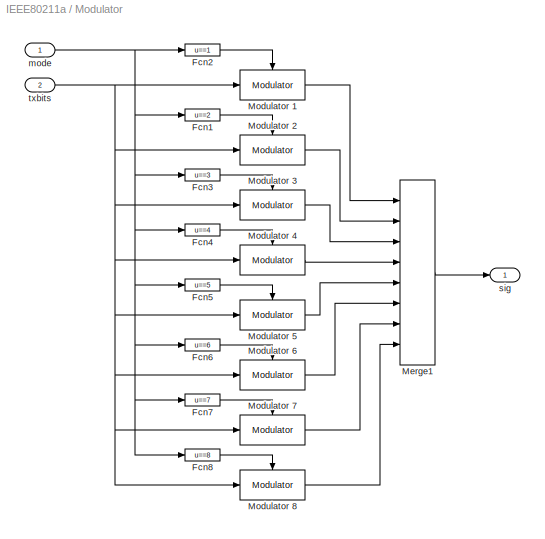
BLOCK [SubSystem] Modulator
  Ports = [2, 1]
  RequestExecContextInheritance = off
  SID = 221
BLOCK [Fcn] Modulator/Fcn1
  Expr = u==2
  SID = 224
BLOCK [Fcn] Modulator/Fcn2
  Expr = u==1
  SID = 225
BLOCK [Fcn] Modulator/Fcn3
  Expr = u==3
  SID = 226
BLOCK [Fcn] Modulator/Fcn4
  Expr = u==4
  SID = 227
BLOCK [Fcn] Modulator/Fcn5
  Expr = u==5
  SID = 228
BLOCK [Fcn] Modulator/Fcn6
  Expr = u==6
  SID = 229
BLOCK [Fcn] Modulator/Fcn7
  Expr = u==7
  SID = 230
BLOCK [Fcn] Modulator/Fcn8
  Expr = u==8
  SID = 231
BLOCK [Merge] Modulator/Merge1
  Inputs = 8
  Ports = [8, 1]
  SID = 232
BLOCK [Reference] Modulator/Modulator 1  REF=IEEE80211a_lib/Modulator
  Ports = [1, 1, 1]
  SID = 233
  SourceBlock = IEEE80211a_lib/Modulator
  SourceType = QAM Modulator-Coder.
  code = 1/2
  modulation = BPSK
  numSymbols = 960
  punctureVector = [1]
  trellisStructure = poly2trellis(7, [171 133])
BLOCK [Reference] Modulator/Modulator 2  REF=IEEE80211a_lib/Modulator
  Ports = [1, 1, 1]
  SID = 234
  SourceBlock = IEEE80211a_lib/Modulator
  SourceType = QAM Modulator-Coder.
  code = 3/4
  modulation = BPSK
  numSymbols = 960
  punctureVector = [1 1 1 0 0 1].'
  trellisStructure = poly2trellis(7, [171 133])
BLOCK [Reference] Modulator/Modulator 3  REF=IEEE80211a_lib/Modulator
  Ports = [1, 1, 1]
  SID = 235
  SourceBlock = IEEE80211a_lib/Modulator
  SourceType = QAM Modulator-Coder.
  code = 1/2
  modulation = QPSK
  numSymbols = 960
  punctureVector = [1]
  trellisStructure = poly2trellis(7, [171 133])
BLOCK [Reference] Modulator/Modulator 4  REF=IEEE80211a_lib/Modulator
  Ports = [1, 1, 1]
  SID = 236
  SourceBlock = IEEE80211a_lib/Modulator
  SourceType = QAM Modulator-Coder.
  code = 3/4
  modulation = QPSK
  numSymbols = 960
  punctureVector = [1 1 1 0 0 1].'
  trellisStructure = poly2trellis(7, [171 133])
BLOCK [Reference] Modulator/Modulator 5  REF=IEEE80211a_lib/Modulator
  Ports = [1, 1, 1]
  SID = 237
  SourceBlock = IEEE80211a_lib/Modulator
  SourceType = QAM Modulator-Coder.
  code = 1/2
  modulation = 16-QAM
  numSymbols = 960
  punctureVector = [1]
  trellisStructure = poly2trellis(7, [171 133])
BLOCK [Reference] Modulator/Modulator 6  REF=IEEE80211a_lib/Modulator
  Ports = [1, 1, 1]
  SID = 238
  SourceBlock = IEEE80211a_lib/Modulator
  SourceType = QAM Modulator-Coder.
  code = 3/4
  modulation = 16-QAM
  numSymbols = 960
  punctureVector = [1 1 1 0 0 1].'
  trellisStructure = poly2trellis(7, [171 133])
BLOCK [Reference] Modulator/Modulator 7  REF=IEEE80211a_lib/Modulator
  Ports = [1, 1, 1]
  SID = 239
  SourceBlock = IEEE80211a_lib/Modulator
  SourceType = QAM Modulator-Coder.
  code = 2/3
  modulation = 64-QAM
  numSymbols = 960
  punctureVector = [1 1 1 0].'
  trellisStructure = poly2trellis(7, [133 171])
BLOCK [Reference] Modulator/Modulator 8  REF=IEEE80211a_lib/Modulator
  Ports = [1, 1, 1]
  SID = 240
  SourceBlock = IEEE80211a_lib/Modulator
  SourceType = QAM Modulator-Coder.
  code = 3/4
  modulation = 64-QAM
  numSymbols = 960
  punctureVector = [1 1 1 0 0 1].'
  trellisStructure = poly2trellis(7, [133 171])
BLOCK [Inport] Modulator/mode
  IconDisplay = Port number
  SID = 222
BLOCK [Outport] Modulator/sig
  IconDisplay = Port number
  SID = 241
BLOCK [Inport] Modulator/txbits
  IconDisplay = Port number
  Port = 2
  SID = 223
BLOCK [SubSystem] Multipath channel
  Ports = [1, 1]
  RequestExecContextInheritance = off
  SID = 242
BLOCK [Reference] Multipath channel/AWGN\nChannel  REF=commchan2/AWGN\nChannel
  EsNodB = 15
  Ports = [2, 1]
  Ps = 1
  SID = 244
  SNRdB = 10
  SourceBlock = commchan2/AWGN\nChannel
  SourceProductBaseCode = CM
  SourceProductName = Communications Toolbox
  SourceType = AWGN Channel
  Tsym = 1e-6
  noiseMode = Variance from port
  seed = 67
  variance = 1
BLOCK [Display] Multipath channel/Bit Rate5
  Decimation = 1
  Ports = [1]
  SID = 245
BLOCK [Reference] Multipath channel/Frame Status\nConversion1  REF=dspsigattribs/Frame Status\nConversion
  Ports = [1, 1]
  SID = 246
  SourceBlock = dspsigattribs/Frame Status\nConversion
  SourceProductBaseCode = DS
  SourceProductName = DSP System Toolbox
  SourceType = Frame Status Conversion
  growRefPort = off
  outframe = Sample-based
BLOCK [SubSystem] Multipath channel/Multipath Rayleigh\nFading Channel1
  Ports = [1, 1]
  RequestExecContextInheritance = off
  SID = 247
BLOCK [Inport] Multipath channel/Multipath Rayleigh\nFading Channel1/In
  IconDisplay = Port number
  SID = 247:1
BLOCK [SubSystem] Multipath channel/Multipath Rayleigh\nFading Channel1/Multipath Fading\nChannel
  Ports = [1, 1]
  RequestExecContextInheritance = off
  SID = 247:2
BLOCK [Reference] Multipath channel/Multipath Rayleigh\nFading Channel1/Multipath Fading\nChannel/Combine Paths  REF=dspmtrx3/Matrix\nSum
  Dim = Rows
  Ports = [1, 1]
  SID = 247:2:2
  SourceBlock = dspmtrx3/Matrix\nSum
  SourceProductBaseCode = DS
  SourceProductName = DSP System Toolbox
  SourceType = Matrix Sum
BLOCK [SubSystem] Multipath channel/Multipath Rayleigh\nFading Channel1/Multipath Fading\nChannel/Fading Profile
  Ports = [0, 1]
  RequestExecContextInheritance = off
  SID = 247:2:3
BLOCK [Outport] Multipath channel/Multipath Rayleigh\nFading Channel1/Multipath Fading\nChannel/Fading Profile/Out
  IconDisplay = Port number
  SID = 247:2:22
BLOCK [SubSystem] Multipath channel/Multipath Rayleigh\nFading Channel1/Multipath Fading\nChannel/Fading Profile/Rebuffer with \nInput Trigger
  Ports = [1, 2]
  RequestExecContextInheritance = off
  SID = 247:2:4
BLOCK [Inport] Multipath channel/Multipath Rayleigh\nFading Channel1/Multipath Fading\nChannel/Fading Profile/Rebuffer with \nInput Trigger/In1
  IconDisplay = Port number
  SID = 247:2:4:1
BLOCK [Outport] Multipath channel/Multipath Rayleigh\nFading Channel1/Multipath Fading\nChannel/Fading Profile/Rebuffer with \nInput Trigger/Out1
  IconDisplay = Port number
  SID = 247:2:4:3
BLOCK [Outport] Multipath channel/Multipath Rayleigh\nFading Channel1/Multipath Fading\nChannel/Fading Profile/Rebuffer with \nInput Trigger/Out2
  IconDisplay = Port number
  Port = 2
  SID = 247:2:4:4
BLOCK [S-Function] Multipath channel/Multipath Rayleigh\nFading Channel1/Multipath Fading\nChannel/Fading Profile/Rebuffer with \nInput Trigger/S-Function
  EnableBusSupport = off
  FunctionName = scomtrigbuff2
  Parameters = startSample, numChan, inputWidthMode, inputWidth, inputWidthMin, inputWidthStep
  Ports = [1, 2]
  SFcnIsStateOwnerBlock = off
  SFunctionDeploymentMode = off
  SID = 247:2:4:2
BLOCK [SubSystem] Multipath channel/Multipath Rayleigh\nFading Channel1/Multipath Fading\nChannel/Fading Profile/Rician Channel \nEffects
  Ports = [1, 1]
  RequestExecContextInheritance = off
  SID = 247:2:5
BLOCK [Inport] Multipath channel/Multipath Rayleigh\nFading Channel1/Multipath Fading\nChannel/Fading Profile/Rician Channel \nEffects/In
  IconDisplay = Port number
  SID = 247:2:6
BLOCK [Outport] Multipath channel/Multipath Rayleigh\nFading Channel1/Multipath Fading\nChannel/Fading Profile/Rician Channel \nEffects/Out
  IconDisplay = Port number
  SID = 247:2:8
BLOCK [S-Function] Multipath channel/Multipath Rayleigh\nFading Channel1/Multipath Fading\nChannel/Fading Profile/Rician Channel \nEffects/S-Function
  EnableBusSupport = off
  FunctionName = scomricianlos2
  Parameters = Doppler,K,opPower,Ts,numChan
  Ports = [1, 1]
  SFcnIsStateOwnerBlock = off
  SFunctionDeploymentMode = off
  SID = 247:2:7
BLOCK [SubSystem] Multipath channel/Multipath Rayleigh\nFading Channel1/Multipath Fading\nChannel/Fading Profile/Triggered Rayleigh Profile
  Ports = [0, 1, 0, 1]
  RequestExecContextInheritance = off
  SID = 247:2:9
  TreatAsAtomicUnit = on
BLOCK [Constant] Multipath channel/Multipath Rayleigh\nFading Channel1/Multipath Fading\nChannel/Fading Profile/Triggered Rayleigh Profile/Constant
  SID = 247:2:11
  Value = j
BLOCK [S-Function] Multipath channel/Multipath Rayleigh\nFading Channel1/Multipath Fading\nChannel/Fading Profile/Triggered Rayleigh Profile/Doppler Filter
  AncestorBlock = dsparch4/Digital Filter
  EnableBusSupport = off
  FunctionName = sdspfilter
  Parameters = a.CoeffsFromMask, a.FilterType, a.FilterStruct, a.FilterPerSample, a.CoeffsNormalized, a.Coeff1, a.Coeff2, a.IC,1
  Ports = [1, 1]
  SFcnIsStateOwnerBlock = off
  SFunctionDeploymentMode = off
  SID = 247:2:12
BLOCK [Reference] Multipath channel/Multipath Rayleigh\nFading Channel1/Multipath Fading\nChannel/Fading Profile/Triggered Rayleigh Profile/FIR Rate\nConversion  REF=dspmlti3/FIR Rate\nConversion
  L = params.interp1
  M = params.decim1
  Ports = [1, 1]
  SID = 247:2:13
  SourceBlock = dspmlti3/FIR Rate\nConversion
  SourceProductBaseCode = DS
  SourceProductName = DSP System Toolbox
  SourceType = FIR Rate Conversion
  h = params.rc1Num
BLOCK [Reference] Multipath channel/Multipath Rayleigh\nFading Channel1/Multipath Fading\nChannel/Fading Profile/Triggered Rayleigh Profile/FIR Rate\nConversion1  REF=dspmlti3/FIR Rate\nConversion
  L = params.interp2
  M = params.decim2
  Ports = [1, 1]
  SID = 247:2:14
  SourceBlock = dspmlti3/FIR Rate\nConversion
  SourceProductBaseCode = DS
  SourceProductName = DSP System Toolbox
  SourceType = FIR Rate Conversion
  h = params.rc2Num
BLOCK [Reference] Multipath channel/Multipath Rayleigh\nFading Channel1/Multipath Fading\nChannel/Fading Profile/Triggered Rayleigh Profile/FIR Rate\nConversion2  REF=dspmlti3/FIR Rate\nConversion
  L = params.interp3
  M = params.decim3
  Ports = [1, 1]
  SID = 247:2:15
  SourceBlock = dspmlti3/FIR Rate\nConversion
  SourceProductBaseCode = DS
  SourceProductName = DSP System Toolbox
  SourceType = FIR Rate Conversion
  h = params.rc3Num
BLOCK [Reference] Multipath channel/Multipath Rayleigh\nFading Channel1/Multipath Fading\nChannel/Fading Profile/Triggered Rayleigh Profile/FIR Rate\nConversion3  REF=dspmlti3/FIR Rate\nConversion
  L = params.interp4
  M = params.decim4
  Ports = [1, 1]
  SID = 247:2:16
  SourceBlock = dspmlti3/FIR Rate\nConversion
  SourceProductBaseCode = DS
  SourceProductName = DSP System Toolbox
  SourceType = FIR Rate Conversion
  h = params.rc4Num
BLOCK [Reference] Multipath channel/Multipath Rayleigh\nFading Channel1/Multipath Fading\nChannel/Fading Profile/Triggered Rayleigh Profile/FIR Rate\nConversion4  REF=dspmlti3/FIR Rate\nConversion
  L = params.interp5
  M = params.decim5
  Ports = [1, 1]
  SID = 247:2:17
  SourceBlock = dspmlti3/FIR Rate\nConversion
  SourceProductBaseCode = DS
  SourceProductName = DSP System Toolbox
  SourceType = FIR Rate Conversion
  h = params.rc5Num
BLOCK [Reference] Multipath channel/Multipath Rayleigh\nFading Channel1/Multipath Fading\nChannel/Fading Profile/Triggered Rayleigh Profile/Frame Status\nConversion  REF=dspsigattribs/Frame Status\nConversion
  Ports = [1, 1]
  SID = 247:2:18
  SourceBlock = dspsigattribs/Frame Status\nConversion
  SourceProductBaseCode = DS
  SourceProductName = DSP System Toolbox
  SourceType = Frame Status Conversion
  growRefPort = off
  outframe = Frame-based
BLOCK [Reference] Multipath channel/Multipath Rayleigh\nFading Channel1/Multipath Fading\nChannel/Fading Profile/Triggered Rayleigh Profile/Inherit\nComplexity  REF=dspsigattribs/Inherit\nComplexity
  Ports = [2, 1]
  SID = 247:2:19
  SourceBlock = dspsigattribs/Inherit\nComplexity
  SourceProductBaseCode = DS
  SourceProductName = DSP System Toolbox
  SourceType = Inherit Complexity
BLOCK [Outport] Multipath channel/Multipath Rayleigh\nFading Channel1/Multipath Fading\nChannel/Fading Profile/Triggered Rayleigh Profile/Out
  IconDisplay = Port number
  SID = 247:2:21
BLOCK [Reference] Multipath channel/Multipath Rayleigh\nFading Channel1/Multipath Fading\nChannel/Fading Profile/Triggered Rayleigh Profile/Random\nSource  REF=dspsrcs4/Random\nSource
  CltLength = 12
  DataType = Double
  Diagnostics = AllowInheritedTsInSrc
  Inherit = on
  Max = 1
  Mean = 0
  Min = 0
  NormMethod = Ziggurat
  OutComplex = Real
  Ports = [0, 1]
  RepMode = Specify seed
  SID = 247:2:20
  SampFrame = 1
  SampMode = Discrete
  SampTime = 1
  Seed = params.Seed
  SourceBlock = dspsrcs4/Random\nSource
  SourceProductBaseCode = DS
  SourceProductName = DSP System Toolbox
  SourceType = Random Source
  SrcType = Gaussian
  UserData = DataTag0
  UserDataPersistent = on
  Var = 1
BLOCK [TriggerPort] Multipath channel/Multipath Rayleigh\nFading Channel1/Multipath Fading\nChannel/Fading Profile/Triggered Rayleigh Profile/Trigger
  Ports = []
  SID = 247:2:10
  TriggerType = function-call
  VariantControl = (inherit)
BLOCK [Inport] Multipath channel/Multipath Rayleigh\nFading Channel1/Multipath Fading\nChannel/In
  IconDisplay = Port number
  SID = 247:2:1
BLOCK [SubSystem] Multipath channel/Multipath Rayleigh\nFading Channel1/Multipath Fading\nChannel/Multiple Delayed Signals
  Ports = [1, 1]
  RequestExecContextInheritance = off
  SID = 247:2:23
BLOCK [Reference] Multipath channel/Multipath Rayleigh\nFading Channel1/Multipath Fading\nChannel/Multiple Delayed Signals/Check Signal\nAttributes  REF=dspsigattribs/Check Signal\nAttributes
  Complexity = Ignore
  DatatypeCheckMethod = Ignore
  DatatypeGeneral = Boolean
  Dimensions = Column vector (2-D) or scalar
  DimsCheckMethod = Is...
  DtypeFixedSpecific = Any fixed-point
  DtypeFloatSpecific = Any floating-point
  DtypeIntSpecific = Any integer
  Frame = Ignore
  Ports = [1, 1]
  SID = 247:2:25
  SampleMode = Ignore
  SigAttribCheckMethod = Does not match attributes exactly
  SourceBlock = dspsigattribs/Check Signal\nAttributes
  SourceProductBaseCode = DS
  SourceProductName = DSP System Toolbox
  SourceType = Check Signal Attributes
BLOCK [Constant] Multipath channel/Multipath Rayleigh\nFading Channel1/Multipath Fading\nChannel/Multiple Delayed Signals/Constant2
  SID = 247:2:26
  Value = [delayVector(:)]'
  VectorParams1D = off
BLOCK [Constant] Multipath channel/Multipath Rayleigh\nFading Channel1/Multipath Fading\nChannel/Multiple Delayed Signals/Constant3
  SID = 247:2:27
  Value = ones(1,nPaths)
  VectorParams1D = off
BLOCK [Inport] Multipath channel/Multipath Rayleigh\nFading Channel1/Multipath Fading\nChannel/Multiple Delayed Signals/In
  IconDisplay = Port number
  SID = 247:2:24
BLOCK [Outport] Multipath channel/Multipath Rayleigh\nFading Channel1/Multipath Fading\nChannel/Multiple Delayed Signals/Out
  IconDisplay = Port number
  SID = 247:2:30
BLOCK [Reference] Multipath channel/Multipath Rayleigh\nFading Channel1/Multipath Fading\nChannel/Multiple Delayed Signals/Permute\nMatrix  REF=dspmtrx3/Permute\nMatrix
  Ports = [2, 1]
  SID = 247:2:28
  SourceBlock = dspmtrx3/Permute\nMatrix
  SourceProductBaseCode = DS
  SourceProductName = DSP System Toolbox
  SourceType = Permute Matrix
  ZeroOneIdxMode = One-based
  checkDims = off
  errmode = Clip Index
  mode = Columns
BLOCK [Reference] Multipath channel/Multipath Rayleigh\nFading Channel1/Multipath Fading\nChannel/Multiple Delayed Signals/Variable\nFractional Delay  REF=dspsigops/Variable\nFractional Delay
  L = 6
  Ports = [2, 1]
  R = 10
  SID = 247:2:29
  SourceBlock = dspsigops/Variable\nFractional Delay
  SourceProductBaseCode = DS
  SourceProductName = DSP System Toolbox
  SourceType = Variable Fractional Delay
  alpha = 1
  dmax = maxDelay
  ic = 0
  mode = FIR Interpolation
BLOCK [SubSystem] Multipath channel/Multipath Rayleigh\nFading Channel1/Multipath Fading\nChannel/Multiply with \nback propagation
  Ports = [2, 1]
  RequestExecContextInheritance = off
  SID = 247:2:31
BLOCK [Inport] Multipath channel/Multipath Rayleigh\nFading Channel1/Multipath Fading\nChannel/Multiply with \nback propagation/In1
  IconDisplay = Port number
  SID = 247:2:32
BLOCK [Inport] Multipath channel/Multipath Rayleigh\nFading Channel1/Multipath Fading\nChannel/Multiply with \nback propagation/In2
  IconDisplay = Port number
  Port = 2
  SID = 247:2:33
BLOCK [Outport] Multipath channel/Multipath Rayleigh\nFading Channel1/Multipath Fading\nChannel/Multiply with \nback propagation/Out1
  IconDisplay = Port number
  SID = 247:2:35
BLOCK [S-Function] Multipath channel/Multipath Rayleigh\nFading Channel1/Multipath Fading\nChannel/Multiply with \nback propagation/S-Function
  EnableBusSupport = off
  FunctionName = scommultwithprop2
  Parameters = propTarget, Ts, numChan
  Ports = [2, 1]
  SFcnIsStateOwnerBlock = off
  SFunctionDeploymentMode = off
  SID = 247:2:34
BLOCK [Outport] Multipath channel/Multipath Rayleigh\nFading Channel1/Multipath Fading\nChannel/Out
  IconDisplay = Port number
  SID = 247:2:36
BLOCK [Outport] Multipath channel/Multipath Rayleigh\nFading Channel1/Out
  IconDisplay = Port number
  SID = 247:3
BLOCK [SubSystem] Multipath channel/Multipath Rayleigh\nFading Channel2
  Ports = [1, 1]
  RequestExecContextInheritance = off
  SID = 248
BLOCK [Inport] Multipath channel/Multipath Rayleigh\nFading Channel2/In
  IconDisplay = Port number
  SID = 248:1
BLOCK [SubSystem] Multipath channel/Multipath Rayleigh\nFading Channel2/Multipath Fading\nChannel
  Ports = [1, 1]
  RequestExecContextInheritance = off
  SID = 248:2
BLOCK [Reference] Multipath channel/Multipath Rayleigh\nFading Channel2/Multipath Fading\nChannel/Combine Paths  REF=dspmtrx3/Matrix\nSum
  Dim = Rows
  Ports = [1, 1]
  SID = 248:2:2
  SourceBlock = dspmtrx3/Matrix\nSum
  SourceProductBaseCode = DS
  SourceProductName = DSP System Toolbox
  SourceType = Matrix Sum
BLOCK [SubSystem] Multipath channel/Multipath Rayleigh\nFading Channel2/Multipath Fading\nChannel/Fading Profile
  Ports = [0, 1]
  RequestExecContextInheritance = off
  SID = 248:2:3
BLOCK [Outport] Multipath channel/Multipath Rayleigh\nFading Channel2/Multipath Fading\nChannel/Fading Profile/Out
  IconDisplay = Port number
  SID = 248:2:22
BLOCK [SubSystem] Multipath channel/Multipath Rayleigh\nFading Channel2/Multipath Fading\nChannel/Fading Profile/Rebuffer with \nInput Trigger
  Ports = [1, 2]
  RequestExecContextInheritance = off
  SID = 248:2:4
BLOCK [Inport] Multipath channel/Multipath Rayleigh\nFading Channel2/Multipath Fading\nChannel/Fading Profile/Rebuffer with \nInput Trigger/In1
  IconDisplay = Port number
  SID = 248:2:4:1
BLOCK [Outport] Multipath channel/Multipath Rayleigh\nFading Channel2/Multipath Fading\nChannel/Fading Profile/Rebuffer with \nInput Trigger/Out1
  IconDisplay = Port number
  SID = 248:2:4:3
BLOCK [Outport] Multipath channel/Multipath Rayleigh\nFading Channel2/Multipath Fading\nChannel/Fading Profile/Rebuffer with \nInput Trigger/Out2
  IconDisplay = Port number
  Port = 2
  SID = 248:2:4:4
BLOCK [S-Function] Multipath channel/Multipath Rayleigh\nFading Channel2/Multipath Fading\nChannel/Fading Profile/Rebuffer with \nInput Trigger/S-Function
  EnableBusSupport = off
  FunctionName = scomtrigbuff2
  Parameters = startSample, numChan, inputWidthMode, inputWidth, inputWidthMin, inputWidthStep
  Ports = [1, 2]
  SFcnIsStateOwnerBlock = off
  SFunctionDeploymentMode = off
  SID = 248:2:4:2
BLOCK [SubSystem] Multipath channel/Multipath Rayleigh\nFading Channel2/Multipath Fading\nChannel/Fading Profile/Rician Channel \nEffects
  Ports = [1, 1]
  RequestExecContextInheritance = off
  SID = 248:2:5
BLOCK [Inport] Multipath channel/Multipath Rayleigh\nFading Channel2/Multipath Fading\nChannel/Fading Profile/Rician Channel \nEffects/In
  IconDisplay = Port number
  SID = 248:2:6
BLOCK [Outport] Multipath channel/Multipath Rayleigh\nFading Channel2/Multipath Fading\nChannel/Fading Profile/Rician Channel \nEffects/Out
  IconDisplay = Port number
  SID = 248:2:8
BLOCK [S-Function] Multipath channel/Multipath Rayleigh\nFading Channel2/Multipath Fading\nChannel/Fading Profile/Rician Channel \nEffects/S-Function
  EnableBusSupport = off
  FunctionName = scomricianlos2
  Parameters = Doppler,K,opPower,Ts,numChan
  Ports = [1, 1]
  SFcnIsStateOwnerBlock = off
  SFunctionDeploymentMode = off
  SID = 248:2:7
BLOCK [SubSystem] Multipath channel/Multipath Rayleigh\nFading Channel2/Multipath Fading\nChannel/Fading Profile/Triggered Rayleigh Profile
  Ports = [0, 1, 0, 1]
  RequestExecContextInheritance = off
  SID = 248:2:9
  TreatAsAtomicUnit = on
BLOCK [Constant] Multipath channel/Multipath Rayleigh\nFading Channel2/Multipath Fading\nChannel/Fading Profile/Triggered Rayleigh Profile/Constant
  SID = 248:2:11
  Value = j
BLOCK [S-Function] Multipath channel/Multipath Rayleigh\nFading Channel2/Multipath Fading\nChannel/Fading Profile/Triggered Rayleigh Profile/Doppler Filter
  AncestorBlock = dsparch4/Digital Filter
  EnableBusSupport = off
  FunctionName = sdspfilter
  Parameters = a.CoeffsFromMask, a.FilterType, a.FilterStruct, a.FilterPerSample, a.CoeffsNormalized, a.Coeff1, a.Coeff2, a.IC,1
  Ports = [1, 1]
  SFcnIsStateOwnerBlock = off
  SFunctionDeploymentMode = off
  SID = 248:2:12
BLOCK [Reference] Multipath channel/Multipath Rayleigh\nFading Channel2/Multipath Fading\nChannel/Fading Profile/Triggered Rayleigh Profile/FIR Rate\nConversion  REF=dspmlti3/FIR Rate\nConversion
  L = params.interp1
  M = params.decim1
  Ports = [1, 1]
  SID = 248:2:13
  SourceBlock = dspmlti3/FIR Rate\nConversion
  SourceProductBaseCode = DS
  SourceProductName = DSP System Toolbox
  SourceType = FIR Rate Conversion
  h = params.rc1Num
BLOCK [Reference] Multipath channel/Multipath Rayleigh\nFading Channel2/Multipath Fading\nChannel/Fading Profile/Triggered Rayleigh Profile/FIR Rate\nConversion1  REF=dspmlti3/FIR Rate\nConversion
  L = params.interp2
  M = params.decim2
  Ports = [1, 1]
  SID = 248:2:14
  SourceBlock = dspmlti3/FIR Rate\nConversion
  SourceProductBaseCode = DS
  SourceProductName = DSP System Toolbox
  SourceType = FIR Rate Conversion
  h = params.rc2Num
BLOCK [Reference] Multipath channel/Multipath Rayleigh\nFading Channel2/Multipath Fading\nChannel/Fading Profile/Triggered Rayleigh Profile/FIR Rate\nConversion2  REF=dspmlti3/FIR Rate\nConversion
  L = params.interp3
  M = params.decim3
  Ports = [1, 1]
  SID = 248:2:15
  SourceBlock = dspmlti3/FIR Rate\nConversion
  SourceProductBaseCode = DS
  SourceProductName = DSP System Toolbox
  SourceType = FIR Rate Conversion
  h = params.rc3Num
BLOCK [Reference] Multipath channel/Multipath Rayleigh\nFading Channel2/Multipath Fading\nChannel/Fading Profile/Triggered Rayleigh Profile/FIR Rate\nConversion3  REF=dspmlti3/FIR Rate\nConversion
  L = params.interp4
  M = params.decim4
  Ports = [1, 1]
  SID = 248:2:16
  SourceBlock = dspmlti3/FIR Rate\nConversion
  SourceProductBaseCode = DS
  SourceProductName = DSP System Toolbox
  SourceType = FIR Rate Conversion
  h = params.rc4Num
BLOCK [Reference] Multipath channel/Multipath Rayleigh\nFading Channel2/Multipath Fading\nChannel/Fading Profile/Triggered Rayleigh Profile/FIR Rate\nConversion4  REF=dspmlti3/FIR Rate\nConversion
  L = params.interp5
  M = params.decim5
  Ports = [1, 1]
  SID = 248:2:17
  SourceBlock = dspmlti3/FIR Rate\nConversion
  SourceProductBaseCode = DS
  SourceProductName = DSP System Toolbox
  SourceType = FIR Rate Conversion
  h = params.rc5Num
BLOCK [Reference] Multipath channel/Multipath Rayleigh\nFading Channel2/Multipath Fading\nChannel/Fading Profile/Triggered Rayleigh Profile/Frame Status\nConversion  REF=dspsigattribs/Frame Status\nConversion
  Ports = [1, 1]
  SID = 248:2:18
  SourceBlock = dspsigattribs/Frame Status\nConversion
  SourceProductBaseCode = DS
  SourceProductName = DSP System Toolbox
  SourceType = Frame Status Conversion
  growRefPort = off
  outframe = Frame-based
BLOCK [Reference] Multipath channel/Multipath Rayleigh\nFading Channel2/Multipath Fading\nChannel/Fading Profile/Triggered Rayleigh Profile/Inherit\nComplexity  REF=dspsigattribs/Inherit\nComplexity
  Ports = [2, 1]
  SID = 248:2:19
  SourceBlock = dspsigattribs/Inherit\nComplexity
  SourceProductBaseCode = DS
  SourceProductName = DSP System Toolbox
  SourceType = Inherit Complexity
BLOCK [Outport] Multipath channel/Multipath Rayleigh\nFading Channel2/Multipath Fading\nChannel/Fading Profile/Triggered Rayleigh Profile/Out
  IconDisplay = Port number
  SID = 248:2:21
BLOCK [Reference] Multipath channel/Multipath Rayleigh\nFading Channel2/Multipath Fading\nChannel/Fading Profile/Triggered Rayleigh Profile/Random\nSource  REF=dspsrcs4/Random\nSource
  CltLength = 12
  DataType = Double
  Diagnostics = AllowInheritedTsInSrc
  Inherit = on
  Max = 1
  Mean = 0
  Min = 0
  NormMethod = Ziggurat
  OutComplex = Real
  Ports = [0, 1]
  RepMode = Specify seed
  SID = 248:2:20
  SampFrame = 1
  SampMode = Discrete
  SampTime = 1
  Seed = params.Seed
  SourceBlock = dspsrcs4/Random\nSource
  SourceProductBaseCode = DS
  SourceProductName = DSP System Toolbox
  SourceType = Random Source
  SrcType = Gaussian
  UserData = DataTag1
  UserDataPersistent = on
  Var = 1
BLOCK [TriggerPort] Multipath channel/Multipath Rayleigh\nFading Channel2/Multipath Fading\nChannel/Fading Profile/Triggered Rayleigh Profile/Trigger
  Ports = []
  SID = 248:2:10
  TriggerType = function-call
  VariantControl = (inherit)
BLOCK [Inport] Multipath channel/Multipath Rayleigh\nFading Channel2/Multipath Fading\nChannel/In
  IconDisplay = Port number
  SID = 248:2:1
BLOCK [SubSystem] Multipath channel/Multipath Rayleigh\nFading Channel2/Multipath Fading\nChannel/Multiple Delayed Signals
  Ports = [1, 1]
  RequestExecContextInheritance = off
  SID = 248:2:23
BLOCK [Reference] Multipath channel/Multipath Rayleigh\nFading Channel2/Multipath Fading\nChannel/Multiple Delayed Signals/Check Signal\nAttributes  REF=dspsigattribs/Check Signal\nAttributes
  Complexity = Ignore
  DatatypeCheckMethod = Ignore
  DatatypeGeneral = Boolean
  Dimensions = Column vector (2-D) or scalar
  DimsCheckMethod = Is...
  DtypeFixedSpecific = Any fixed-point
  DtypeFloatSpecific = Any floating-point
  DtypeIntSpecific = Any integer
  Frame = Ignore
  Ports = [1, 1]
  SID = 248:2:25
  SampleMode = Ignore
  SigAttribCheckMethod = Does not match attributes exactly
  SourceBlock = dspsigattribs/Check Signal\nAttributes
  SourceProductBaseCode = DS
  SourceProductName = DSP System Toolbox
  SourceType = Check Signal Attributes
BLOCK [Constant] Multipath channel/Multipath Rayleigh\nFading Channel2/Multipath Fading\nChannel/Multiple Delayed Signals/Constant2
  SID = 248:2:26
  Value = [delayVector(:)]'
  VectorParams1D = off
BLOCK [Constant] Multipath channel/Multipath Rayleigh\nFading Channel2/Multipath Fading\nChannel/Multiple Delayed Signals/Constant3
  SID = 248:2:27
  Value = ones(1,nPaths)
  VectorParams1D = off
BLOCK [Inport] Multipath channel/Multipath Rayleigh\nFading Channel2/Multipath Fading\nChannel/Multiple Delayed Signals/In
  IconDisplay = Port number
  SID = 248:2:24
BLOCK [Outport] Multipath channel/Multipath Rayleigh\nFading Channel2/Multipath Fading\nChannel/Multiple Delayed Signals/Out
  IconDisplay = Port number
  SID = 248:2:30
BLOCK [Reference] Multipath channel/Multipath Rayleigh\nFading Channel2/Multipath Fading\nChannel/Multiple Delayed Signals/Permute\nMatrix  REF=dspmtrx3/Permute\nMatrix
  Ports = [2, 1]
  SID = 248:2:28
  SourceBlock = dspmtrx3/Permute\nMatrix
  SourceProductBaseCode = DS
  SourceProductName = DSP System Toolbox
  SourceType = Permute Matrix
  ZeroOneIdxMode = One-based
  checkDims = off
  errmode = Clip Index
  mode = Columns
BLOCK [Reference] Multipath channel/Multipath Rayleigh\nFading Channel2/Multipath Fading\nChannel/Multiple Delayed Signals/Variable\nFractional Delay  REF=dspsigops/Variable\nFractional Delay
  L = 6
  Ports = [2, 1]
  R = 10
  SID = 248:2:29
  SourceBlock = dspsigops/Variable\nFractional Delay
  SourceProductBaseCode = DS
  SourceProductName = DSP System Toolbox
  SourceType = Variable Fractional Delay
  alpha = 1
  dmax = maxDelay
  ic = 0
  mode = FIR Interpolation
BLOCK [SubSystem] Multipath channel/Multipath Rayleigh\nFading Channel2/Multipath Fading\nChannel/Multiply with \nback propagation
  Ports = [2, 1]
  RequestExecContextInheritance = off
  SID = 248:2:31
BLOCK [Inport] Multipath channel/Multipath Rayleigh\nFading Channel2/Multipath Fading\nChannel/Multiply with \nback propagation/In1
  IconDisplay = Port number
  SID = 248:2:32
BLOCK [Inport] Multipath channel/Multipath Rayleigh\nFading Channel2/Multipath Fading\nChannel/Multiply with \nback propagation/In2
  IconDisplay = Port number
  Port = 2
  SID = 248:2:33
BLOCK [Outport] Multipath channel/Multipath Rayleigh\nFading Channel2/Multipath Fading\nChannel/Multiply with \nback propagation/Out1
  IconDisplay = Port number
  SID = 248:2:35
BLOCK [S-Function] Multipath channel/Multipath Rayleigh\nFading Channel2/Multipath Fading\nChannel/Multiply with \nback propagation/S-Function
  EnableBusSupport = off
  FunctionName = scommultwithprop2
  Parameters = propTarget, Ts, numChan
  Ports = [2, 1]
  SFcnIsStateOwnerBlock = off
  SFunctionDeploymentMode = off
  SID = 248:2:34
BLOCK [Outport] Multipath channel/Multipath Rayleigh\nFading Channel2/Multipath Fading\nChannel/Out
  IconDisplay = Port number
  SID = 248:2:36
BLOCK [Outport] Multipath channel/Multipath Rayleigh\nFading Channel2/Out
  IconDisplay = Port number
  SID = 248:3
BLOCK [MultiPortSwitch] Multipath channel/Multiport\nSwitch
  InputSameDT = off
  Ports = [4, 1]
  SID = 249
BLOCK [Constant] Multipath channel/SNRdB
  SID = 250
  Value = SNRdB
BLOCK [Sum] Multipath channel/Sum
  InputSameDT = off
  OutDataTypeStr = Inherit: Inherit via internal rule
  Ports = [2, 1]
  SID = 251
BLOCK [Reference] Multipath channel/Variance  REF=dspstat3/Variance
  Ports = [1, 1]
  SID = 252
  SourceBlock = dspstat3/Variance
  SourceProductBaseCode = DS
  SourceProductName = DSP System Toolbox
  SourceType = Variance
  reset_popup = None
  run = off
BLOCK [Reference] Multipath channel/dB Conversion1  REF=dspmathops/dB Conversion
  Ports = [1, 1]
  R = 1
  SID = 253
  SourceBlock = dspmathops/dB Conversion
  SourceProductBaseCode = DS
  SourceProductName = DSP System Toolbox
  SourceType = dB Conversion
  dBtype = dB
  fuzz = on
  intype = Power
BLOCK [Constant] Multipath channel/fadingMode
  SID = 254
  Value = fadingMode
BLOCK [SubSystem] Multipath channel/invdB1
  Ports = [1, 1]
  RequestExecContextInheritance = off
  SID = 255
BLOCK [Gain] Multipath channel/invdB1/Gain
  Gain = -0.1
  SID = 257
BLOCK [Math] Multipath channel/invdB1/Math\nFunction
  Operator = 10^u
  Ports = [1, 1]
  SID = 258
BLOCK [Outport] Multipath channel/invdB1/dB
  IconDisplay = Port number
  SID = 259
BLOCK [Inport] Multipath channel/invdB1/gain
  IconDisplay = Port number
  SID = 256
BLOCK [Outport] Multipath channel/rxsig
  IconDisplay = Port number
  SID = 260
BLOCK [Inport] Multipath channel/txsig
  IconDisplay = Port number
  SID = 243
BLOCK [SubSystem] Multiplex
  Ports = [1, 1]
  RequestExecContextInheritance = off
  SID = 263
BLOCK [Inport] Multiplex/In1
  IconDisplay = Port number
  SID = 264
BLOCK [Outport] Multiplex/Out1
  IconDisplay = Port number
  SID = 266
BLOCK [Reference] Multiplex/Reshape2  REF=simulink/Math\nOperations/Reshape
  OutputDimensionality = Column vector
  OutputDimensions = 1600
  Ports = [1, 1]
  SID = 265
  SourceBlock = simulink/Math\nOperations/Reshape
  SourceProductBaseCode = SL
  SourceProductName = Simulink
  SourceType = Reshape
BLOCK [SubSystem] PER calculation
  Ports = [3, 1]
  RequestExecContextInheritance = off
  SID = 267
BLOCK [SubSystem] PER calculation/Bit indices
  Ports = [2, 1]
  RequestExecContextInheritance = off
  SID = 271
BLOCK [Constant] PER calculation/Bit indices/Constant
  SID = 274
  Value = (1:max(params.bitsPerBlock)).'
  VectorParams1D = off
BLOCK [Product] PER calculation/Bit indices/Product
  InputSameDT = off
  Inputs = 3
  Ports = [3, 1]
  RndMeth = Floor
  SID = 275
BLOCK [RelationalOperator] PER calculation/Bit indices/Relational Operator1
  Operator = <=
  OutDataTypeStr = float('double')
  Ports = [2, 1]
  SID = 276
BLOCK [RelationalOperator] PER calculation/Bit indices/Relational Operator2
  Operator = >
  OutDataTypeStr = float('double')
  Ports = [2, 1]
  SID = 277
BLOCK [Reference] PER calculation/Bit indices/bits per block  REF=IEEE80211a_lib/Select value
  Ports = [1, 1]
  SID = 278
  SourceBlock = IEEE80211a_lib/Select value
  vector = params.bitsPerBlock.'
BLOCK [Inport] PER calculation/Bit indices/delay
  IconDisplay = Port number
  Port = 2
  SID = 273
BLOCK [Inport] PER calculation/Bit indices/mode
  IconDisplay = Port number
  SID = 272
BLOCK [Outport] PER calculation/Bit indices/sel
  IconDisplay = Port number
  SID = 279
BLOCK [Reference] PER calculation/Error Rate\nCalculation  REF=commsink2/Error Rate\nCalculation
  N = 0
  PMode = Port
  Ports = [3, 1]
  RsMode2 = off
  SID = 280
  SourceBlock = commsink2/Error Rate\nCalculation
  SourceProductBaseCode = CM
  SourceProductName = Communications Toolbox
  SourceType = Error Rate Calculation
  WsName = ErrorVec
  cp_mode = Select samples from port
  maxBits = 1e6
  numErr = 100
  st_delay = 0
  stop = off
  subframe = []
BLOCK [Outport] PER calculation/PER
  IconDisplay = Port number
  SID = 308
BLOCK [Selector] PER calculation/Selector
  IndexOptions = Index vector (dialog)
  Indices = 2
  InputPortWidth = 3
  OutputSizes = 1
  Ports = [1, 1]
  SID = 281
BLOCK [SubSystem] PER calculation/Translate to\npacket error rate
  Ports = [1, 1]
  RequestExecContextInheritance = off
  SID = 282
BLOCK [Constant] PER calculation/Translate to\npacket error rate/Constant
  SID = 284
  Value = 0
BLOCK [Gain] PER calculation/Translate to\npacket error rate/Convert to %
  Gain = 100
  SID = 285
BLOCK [DataTypeConversion] PER calculation/Translate to\npacket error rate/Data Type Conversion
  OutDataTypeStr = double
  SID = 286
BLOCK [Fcn] PER calculation/Translate to\npacket error rate/Fcn
  Expr = 1
  SID = 287
BLOCK [Reference] PER calculation/Translate to\npacket error rate/Integer Delay  REF=dspsigops/Integer Delay
  Ports = [1, 1]
  SID = 288
  SourceBlock = dspsigops/Integer Delay
  SourceProductBaseCode = DS
  SourceProductName = DSP System Toolbox
  SourceType = Integer Delay
  delay = 1
  ic = 0
  reset_popup = None
BLOCK [Reference] PER calculation/Translate to\npacket error rate/Integer Delay1  REF=dspsigops/Integer Delay
  Ports = [1, 1]
  SID = 289
  SourceBlock = dspsigops/Integer Delay
  SourceProductBaseCode = DS
  SourceProductName = DSP System Toolbox
  SourceType = Integer Delay
  delay = 1
  ic = 0
  reset_popup = None
BLOCK [Reference] PER calculation/Translate to\npacket error rate/Integer Delay2  REF=dspsigops/Integer Delay
  Ports = [1, 1]
  SID = 290
  SourceBlock = dspsigops/Integer Delay
  SourceProductBaseCode = DS
  SourceProductName = DSP System Toolbox
  SourceType = Integer Delay
  delay = 1
  ic = 0
  reset_popup = None
BLOCK [Reference] PER calculation/Translate to\npacket error rate/Integer Delay3  REF=dspsigops/Integer Delay
  Ports = [1, 1]
  SID = 291
  SourceBlock = dspsigops/Integer Delay
  SourceProductBaseCode = DS
  SourceProductName = DSP System Toolbox
  SourceType = Integer Delay
  delay = 50
  ic = 0
  reset_popup = None
BLOCK [Reference] PER calculation/Translate to\npacket error rate/Integer Delay4  REF=dspsigops/Integer Delay
  Ports = [1, 1]
  SID = 292
  SourceBlock = dspsigops/Integer Delay
  SourceProductBaseCode = DS
  SourceProductName = DSP System Toolbox
  SourceType = Integer Delay
  delay = 50
  ic = 0
  reset_popup = None
BLOCK [Outport] PER calculation/Translate to\npacket error rate/PER
  IconDisplay = Port number
  SID = 301
BLOCK [Product] PER calculation/Translate to\npacket error rate/Product
  InputSameDT = off
  Inputs = */
  Ports = [2, 1]
  RndMeth = Floor
  SID = 293
BLOCK [RelationalOperator] PER calculation/Translate to\npacket error rate/Relational\nOperator
  InputSameDT = off
  Operator = >
  Ports = [2, 1]
  SID = 294
BLOCK [Rounding] PER calculation/Translate to\npacket error rate/Rounding\nFunction
  Operator = round
  SID = 295
BLOCK [Rounding] PER calculation/Translate to\npacket error rate/Rounding\nFunction1
  Operator = round
  SID = 296
BLOCK [Rounding] PER calculation/Translate to\npacket error rate/Rounding\nFunction2
  Operator = round
  SID = 297
BLOCK [Sum] PER calculation/Translate to\npacket error rate/Sum
  IconShape = round
  InputSameDT = off
  Inputs = |+-
  OutDataTypeStr = Inherit: Inherit via internal rule
  Ports = [2, 1]
  SID = 298
BLOCK [Sum] PER calculation/Translate to\npacket error rate/Sum1
  InputSameDT = off
  Inputs = +-+
  OutDataTypeStr = Inherit: Inherit via internal rule
  Ports = [3, 1]
  SID = 299
BLOCK [Sum] PER calculation/Translate to\npacket error rate/Sum2
  InputSameDT = off
  Inputs = +-+
  OutDataTypeStr = Inherit: Inherit via internal rule
  Ports = [3, 1]
  SID = 300
BLOCK [Inport] PER calculation/Translate to\npacket error rate/bit errors
  IconDisplay = Port number
  SID = 283
BLOCK [Reference] PER calculation/Variable\nInteger Delay  REF=dspsigops/Variable\nInteger Delay
  Ports = [2, 1]
  SID = 306
  SourceBlock = dspsigops/Variable\nInteger Delay
  SourceProductBaseCode = DS
  SourceProductName = DSP System Toolbox
  SourceType = Variable Integer Delay
  dmax = 100
  ic = 0
BLOCK [Reference] PER calculation/link delay  REF=IEEE80211a_lib/Select value
  Ports = [1, 1]
  SID = 307
  SourceBlock = IEEE80211a_lib/Select value
  vector = params.link_delay.'
BLOCK [Inport] PER calculation/mode
  IconDisplay = Port number
  Port = 2
  SID = 269
BLOCK [Inport] PER calculation/rx
  IconDisplay = Port number
  Port = 3
  SID = 270
BLOCK [Inport] PER calculation/tx
  IconDisplay = Port number
  SID = 268
BLOCK [SubSystem] Pilots
  Ports = [0, 1]
  RequestExecContextInheritance = off
  SID = 309
BLOCK [Reference] Pilots/PN Sequence\nGenerator  REF=commseqgen2/PN Sequence\nGenerator
  Ports = [0, 1]
  SID = 310
  SourceBlock = commseqgen2/PN Sequence\nGenerator
  SourceProductBaseCode = CM
  SourceProductName = Communications Toolbox
  SourceType = PN Sequence Generator
  Ts = params.blockPeriod/params.OFDMSymPerFrame
  frameBased = on
  ini_sta = [1 1 1 1 1 1 1]
  poly = [1 0 0 0 1 0 0 1]
  reset = off
  sampPerFrame = params.OFDMSymPerFrame
  shift = 0
BLOCK [Reference] Pilots/Reshape  REF=simulink/Math\nOperations/Reshape
  OutputDimensionality = Row vector
  OutputDimensions = [1,1]
  Ports = [1, 1]
  SID = 311
  SourceBlock = simulink/Math\nOperations/Reshape
  SourceProductBaseCode = SL
  SourceProductName = Simulink
  SourceType = Reshape
BLOCK [Reference] Pilots/Unipolar to\nBipolar\nConverter  REF=commutil2/Unipolar to\nBipolar\nConverter
  M = 2
  Ports = [1, 1]
  SID = 312
  SourceBlock = commutil2/Unipolar to\nBipolar\nConverter
  SourceProductBaseCode = CM
  SourceProductName = Communications Toolbox
  SourceType = Unipolar to Bipolar Converter
  polarity = Negative
BLOCK [Outport] Pilots/out
  IconDisplay = Port number
  SID = 313
BLOCK [SubSystem] Select symbols
  Ports = [1, 1]
  RequestExecContextInheritance = off
  SID = 314
BLOCK [Inport] Select symbols/In1
  IconDisplay = Port number
  SID = 315
BLOCK [Outport] Select symbols/Out1
  IconDisplay = Port number
  SID = 317
BLOCK [Selector] Select symbols/Select symbols
  IndexOptions = Index vector (dialog),Select all
  Indices = params.RXSelectFFTIndices,-1
  InputPortWidth = 64
  NumberOfDimensions = 2
  OutputSizes = 1
  Ports = [1, 1]
  SID = 316
BLOCK [SubSystem] Transform to\nfrequency domain
  Ports = [1, 1]
  RequestExecContextInheritance = off
  SID = 318
BLOCK [Reference] Transform to\nfrequency domain/FFT  REF=dspxfrm3/FFT
  BitRevOrder = off
  CompMethod = Table lookup
  Ports = [1, 1]
  SID = 320
  SourceBlock = dspxfrm3/FFT
  SourceProductBaseCode = DS
  SourceProductName = DSP System Toolbox
  SourceType = FFT
  TableOpt = Speed
BLOCK [Reference] Transform to\nfrequency domain/Frame Status\nConversion  REF=dspsigattribs/Frame Status\nConversion
  Ports = [1, 1]
  SID = 321
  SourceBlock = dspsigattribs/Frame Status\nConversion
  SourceProductBaseCode = DS
  SourceProductName = DSP System Toolbox
  SourceType = Frame Status Conversion
  growRefPort = off
  outframe = Frame-based
BLOCK [Gain] Transform to\nfrequency domain/Normalize
  Gain = 1/sqrt(params.NFFT)/(sqrt(params.NFFT/params.NST))
  SID = 322
BLOCK [Inport] Transform to\nfrequency domain/in
  IconDisplay = Port number
  SID = 319
BLOCK [Outport] Transform to\nfrequency domain/out
  IconDisplay = Port number
  SID = 323
BLOCK [SubSystem] Transform to\ntime domain
  Ports = [1, 1]
  RequestExecContextInheritance = off
  SID = 324
BLOCK [Reference] Transform to\ntime domain/IFFT  REF=dspxfrm3/IFFT
  BitRevOrder = off
  CompMethod = Table lookup
  Ports = [1, 1]
  SID = 326
  SkipNorm = off
  SourceBlock = dspxfrm3/IFFT
  SourceProductBaseCode = DS
  SourceProductName = DSP System Toolbox
  SourceType = IFFT
  TableOpt = Speed
  cs_in = off
  mode = Complex
BLOCK [Gain] Transform to\ntime domain/Normalize
  Gain = sqrt(params.NFFT)*sqrt(params.NFFT/params.NST)
  SID = 327
BLOCK [Selector] Transform to\ntime domain/Shift for FFT
  IndexOptions = Index vector (dialog),Select all
  Indices = params.TXFFTShiftIndices,-1
  InputPortWidth = 64
  NumberOfDimensions = 2
  OutputSizes = 1
  Ports = [1, 1]
  SID = 328
BLOCK [Inport] Transform to\ntime domain/in
  IconDisplay = Port number
  SID = 325
BLOCK [Outport] Transform to\ntime domain/out
  IconDisplay = Port number
  SID = 329
BLOCK [Reference] Zero Pad  REF=dspsigops/Zero Pad
  Ports = [1, 1]
  SID = 330
  SourceBlock = dspsigops/Zero Pad
  SourceProductBaseCode = DS
  SourceProductName = DSP System Toolbox
  SourceType = Zero Pad
  numOutCols = 1
  numOutRows = params.NFFT
  padNumOutColsSpecMethod = User-specified
  padNumOutRowsSpecMethod = User-specified
  padSigAt = End
  trunc_flag = None
  zpadAlong = Columns
BLOCK [SubSystem] adjust settings
  Ports = []
  Priority = 1
  RequestExecContextInheritance = off
  SID = 331
BLOCK [SubSystem] cyclic prefix
  Ports = [1, 1]
  RequestExecContextInheritance = off
  SID = 333
BLOCK [Selector] cyclic prefix/Add Cyclic\nPrefix
  IndexOptions = Index vector (dialog),Select all
  Indices = params.TXCyclicPrefixIndices,-1
  InputPortWidth = 64
  NumberOfDimensions = 2
  OutputSizes = 1
  Ports = [1, 1]
  SID = 335
BLOCK [Inport] cyclic prefix/in
  IconDisplay = Port number
  SID = 334
BLOCK [Outport] cyclic prefix/out
  IconDisplay = Port number
  SID = 336
BLOCK [SubSystem] remove cyclic prefix
  Ports = [1, 1]
  RequestExecContextInheritance = off
  SID = 337
BLOCK [Inport] remove cyclic prefix/In1
  IconDisplay = Port number
  SID = 338
BLOCK [Outport] remove cyclic prefix/Out1
  IconDisplay = Port number
  SID = 340
BLOCK [Selector] remove cyclic prefix/Remove\ncyclic prefix
  IndexOptions = Index vector (dialog),Select all
  Indices = params.RXCyclicPrefixIndices,-1
  InputPortWidth = 80
  NumberOfDimensions = 2
  OutputSizes = 1
  Ports = [1, 1]
  SID = 339
BLOCK [SubSystem] remove pilots and deframe
  Ports = [1, 1]
  RequestExecContextInheritance = off
  SID = 341
BLOCK [Reference] remove pilots and deframe/Remove\npilots  REF=dspindex/Multiport\nSelector
  Ports = [1, 2]
  SID = 343
  SourceBlock = dspindex/Multiport\nSelector
  SourceProductBaseCode = DS
  SourceProductName = DSP System Toolbox
  SourceType = Multiport Selector
  idxCellArray = {[1:5 7:19 21:32 34:46 48:52], [6 20 33 47]}
  idxErrMode = Clip Index
  rowsOrCols = Rows
BLOCK [Reference] remove pilots and deframe/Reshape3  REF=simulink/Math\nOperations/Reshape
  OutputDimensionality = Column vector
  OutputDimensions = 960
  Ports = [1, 1]
  SID = 344
  SourceBlock = simulink/Math\nOperations/Reshape
  SourceProductBaseCode = SL
  SourceProductName = Simulink
  SourceType = Reshape
BLOCK [Terminator] remove pilots and deframe/Terminator
  SID = 345
BLOCK [Inport] remove pilots and deframe/in
  IconDisplay = Port number
  SID = 342
BLOCK [Outport] remove pilots and deframe/out
  IconDisplay = Port number
  SID = 346
BLOCK [SubSystem] remove pilots and training
  Ports = [1, 1]
  RequestExecContextInheritance = off
  SID = 347
BLOCK [Reference] remove pilots and training/Frame Status\nConversion  REF=dspsigattribs/Frame Status\nConversion
  Ports = [1, 1]
  SID = 349
  SourceBlock = dspsigattribs/Frame Status\nConversion
  SourceProductBaseCode = DS
  SourceProductName = DSP System Toolbox
  SourceType = Frame Status Conversion
  growRefPort = off
  outframe = Sample-based
BLOCK [Selector] remove pilots and training/Remove training\nand pilots
  IndexOptions = Index vector (dialog),Index vector (dialog)
  Indices = [1:5 7:19 21:32 34:46 48:52],params.OFDMTrainPerFrame+1:params.OFDMTotSymPerFrame
  InputPortWidth = 80
  NumberOfDimensions = 2
  OutputSizes = 1
  Ports = [1, 1]
  SID = 351
BLOCK [Selector] remove pilots and training/Remove\nDC component
  IndexOptions = Index vector (dialog),Select all
  Indices = [1:26 28:53],-1
  InputPortWidth = 53
  NumberOfDimensions = 2
  OutputSizes = 1
  Ports = [1, 1]
  SID = 350
BLOCK [Reference] remove pilots and training/Reshape5  REF=simulink/Math\nOperations/Reshape
  OutputDimensionality = Column vector
  OutputDimensions = 960
  Ports = [1, 1]
  SID = 352
  SourceBlock = simulink/Math\nOperations/Reshape
  SourceProductBaseCode = SL
  SourceProductName = Simulink
  SourceType = Reshape
BLOCK [Inport] remove pilots and training/in
  IconDisplay = Port number
  SID = 348
BLOCK [Outport] remove pilots and training/out
  IconDisplay = Port number
  SID = 353
BLOCK [SubSystem] training
  Ports = [0, 1]
  RequestExecContextInheritance = off
  SID = 354
BLOCK [SubSystem] training sequence
  Ports = [0, 1]
  RequestExecContextInheritance = off
  SID = 358
BLOCK [Reference] training sequence/Frame Status\nConversion  REF=dspsigattribs/Frame Status\nConversion
  Ports = [1, 1]
  SID = 359
  SourceBlock = dspsigattribs/Frame Status\nConversion
  SourceProductBaseCode = DS
  SourceProductName = DSP System Toolbox
  SourceType = Frame Status Conversion
  growRefPort = off
  outframe = Frame-based
BLOCK [Constant] training sequence/Training\nsequence
  SID = 360
  Value = repmat(params.long_training_seq, [1 params.OFDMTrainPerFrame])
BLOCK [Outport] training sequence/out
  IconDisplay = Port number
  SID = 361
BLOCK [Reference] training/Frame Status\nConversion  REF=dspsigattribs/Frame Status\nConversion
  Ports = [1, 1]
  SID = 355
  SourceBlock = dspsigattribs/Frame Status\nConversion
  SourceProductBaseCode = DS
  SourceProductName = DSP System Toolbox
  SourceType = Frame Status Conversion
  growRefPort = off
  outframe = Frame-based
BLOCK [Outport] training/Out1
  IconDisplay = Port number
  SID = 357
BLOCK [Constant] training/Training\nsequence
  SID = 356
  Value = repmat(params.long_training_seq, [1 params.OFDMTrainPerFrame])
ANNOTATION (root): %
ANNOTATION (root): Bit Rate
ANNOTATION (root): Double click to see\n documentation\nand color legend
ANNOTATION (root): Double click to set \nchannel parameters
ANNOTATION (root): Double click to set\n simulation parameters
ANNOTATION (root): Error Vector\nMagnitude
ANNOTATION (root): IEEE 802.11a WLAN PHY
ANNOTATION (root): Mb/s
ANNOTATION (root): PER
ANNOTATION (root): SNR
ANNOTATION (root): dB
ANNOTATION Equalizer: data
ANNOTATION Multipath channel: SNR
ANNOTATION Multipath channel: dB
ANNOTATION PER calculation/Translate to\npacket error rate: Packet error rate taken over last 50 frames
ANNOTATION PER calculation/Translate to\npacket error rate: bit errors in\ncurrent pkt
ANNOTATION PER calculation/Translate to\npacket error rate: num packets
ANNOTATION PER calculation/Translate to\npacket error rate: packet errors
ANNOTATION adjust settings: This subsystem is empty.\nIt is used for setting parameter values (in the mask).
LINE Adaptive Modulation Control/ Demux :1 -> Adaptive Modulation Control/ Terminator :1
LINE Adaptive Modulation Control/ SFunction :1 -> Adaptive Modulation Control/ Demux :1
LINE Adaptive Modulation Control/ SFunction :2 -> Adaptive Modulation Control/modIdx:1
LINE Adaptive Modulation Control/ SFunction :3 -> Adaptive Modulation Control/bitRate:1
LINE Adaptive Modulation Control/snrEst:1 -> Adaptive Modulation Control/ SFunction :1
LINE Adaptive Modulation Control:1 -> Integer Delay1:1
LINE Adaptive Modulation Control:2 -> Bit Rate3:1
LINE Assemble OFDM frame/Assemble\nSubcarriers:1 -> Assemble OFDM frame/Prepend\ntraining seq:2
LINE Assemble OFDM frame/DC value/Constant:1 -> Assemble OFDM frame/DC value/Frame Status\nConversion:1
LINE Assemble OFDM frame/DC value/Frame Status\nConversion:1 -> Assemble OFDM frame/DC value/out:1
LINE Assemble OFDM frame/DC value:1 -> Assemble OFDM frame/Assemble\nSubcarriers:6
LINE Assemble OFDM frame/Gain:1 -> Assemble OFDM frame/Assemble\nSubcarriers:10
LINE Assemble OFDM frame/Prepend\ntraining seq:1 -> Assemble OFDM frame/out:1
LINE Assemble OFDM frame/Select data\nblocks:1 -> Assemble OFDM frame/Assemble\nSubcarriers:1
LINE Assemble OFDM frame/Select data\nblocks:2 -> Assemble OFDM frame/Assemble\nSubcarriers:3
LINE Assemble OFDM frame/Select data\nblocks:3 -> Assemble OFDM frame/Assemble\nSubcarriers:5
LINE Assemble OFDM frame/Select data\nblocks:4 -> Assemble OFDM frame/Assemble\nSubcarriers:7
LINE Assemble OFDM frame/Select data\nblocks:5 -> Assemble OFDM frame/Assemble\nSubcarriers:9
LINE Assemble OFDM frame/Select data\nblocks:6 -> Assemble OFDM frame/Assemble\nSubcarriers:11
LINE Assemble OFDM frame/in:1 -> Assemble OFDM frame/Select data\nblocks:1
NET Assemble OFDM frame/pilot:1 -> Assemble OFDM frame/Assemble\nSubcarriers:2, Assemble OFDM frame/Assemble\nSubcarriers:4, Assemble OFDM frame/Assemble\nSubcarriers:8, Assemble OFDM frame/Gain:1
LINE Assemble OFDM frame/train:1 -> Assemble OFDM frame/Prepend\ntraining seq:1
LINE Assemble OFDM frame:1 -> Zero Pad:1
LINE Data source/Binary source/Constant:1 -> Data source/Binary source/Relational Operator:2
LINE Data source/Binary source/Random Source:1 -> Data source/Binary source/Relational Operator:1
LINE Data source/Binary source/Relational Operator:1 -> Data source/Binary source/data out:1
LINE Data source/Binary source:1 -> Data source/Buffer:1
LINE Data source/Buffer:1 -> Data source/tx bits:1
LINE Data source/Source enable/Constant:1 -> Data source/Source enable/Relational Operator1:1
LINE Data source/Source enable/Relational Operator1:1 -> Data source/Source enable/Unbuffer:1
LINE Data source/Source enable/Unbuffer:1 -> Data source/Source enable/enable:1
LINE Data source/Source enable/mode:1 -> Data source/Source enable/slot size:1
LINE Data source/Source enable/slot size:1 -> Data source/Source enable/Relational Operator1:2
LINE Data source/Source enable:1 -> Data source/Binary source:enable
LINE Data source/mode:1 -> Data source/Source enable:1
NET Data source:1 -> Goto3:1, Modulator:2, PER calculation:1
LINE Demodulator/Abs:1 -> Demodulator/EVM:1
LINE Demodulator/Demodulator 1:1 -> Demodulator/Zero Pad1:1
LINE Demodulator/Demodulator 1:2 -> Demodulator/Multiport\nSwitch1:2
LINE Demodulator/Demodulator 2:1 -> Demodulator/Zero Pad2:1
LINE Demodulator/Demodulator 2:2 -> Demodulator/Multiport\nSwitch1:3
LINE Demodulator/Demodulator 3:1 -> Demodulator/Zero Pad3:1
LINE Demodulator/Demodulator 3:2 -> Demodulator/Multiport\nSwitch1:4
LINE Demodulator/Demodulator 4:1 -> Demodulator/Zero Pad4:1
LINE Demodulator/Demodulator 4:2 -> Demodulator/Multiport\nSwitch1:5
LINE Demodulator/Demodulator 5:1 -> Demodulator/Zero Pad5:1
LINE Demodulator/Demodulator 5:2 -> Demodulator/Multiport\nSwitch1:6
LINE Demodulator/Demodulator 6:1 -> Demodulator/Zero Pad6:1
LINE Demodulator/Demodulator 6:2 -> Demodulator/Multiport\nSwitch1:7
LINE Demodulator/Demodulator 7:1 -> Demodulator/Zero Pad7:1
LINE Demodulator/Demodulator 7:2 -> Demodulator/Multiport\nSwitch1:8
LINE Demodulator/Demodulator 8:1 -> Demodulator/Zero Pad8:1
LINE Demodulator/Demodulator 8:2 -> Demodulator/Multiport\nSwitch1:9
LINE Demodulator/Fcn1:1 -> Demodulator/Demodulator 2:enable
LINE Demodulator/Fcn2:1 -> Demodulator/Demodulator 3:enable
LINE Demodulator/Fcn3:1 -> Demodulator/Demodulator 4:enable
LINE Demodulator/Fcn4:1 -> Demodulator/Demodulator 1:enable
LINE Demodulator/Fcn5:1 -> Demodulator/Demodulator 5:enable
LINE Demodulator/Fcn6:1 -> Demodulator/Demodulator 6:enable
LINE Demodulator/Fcn7:1 -> Demodulator/Demodulator 7:enable
LINE Demodulator/Fcn8:1 -> Demodulator/Demodulator 8:enable
LINE Demodulator/Frame Status\nConversion:1 -> Demodulator/Abs:1
LINE Demodulator/Multiport\nSwitch1:1 -> Demodulator/Frame Status\nConversion:1
LINE Demodulator/Multiport\nSwitch:1 -> Demodulator/rxbits:1
LINE Demodulator/Zero Pad1:1 -> Demodulator/Multiport\nSwitch:2
LINE Demodulator/Zero Pad2:1 -> Demodulator/Multiport\nSwitch:3
LINE Demodulator/Zero Pad3:1 -> Demodulator/Multiport\nSwitch:4
LINE Demodulator/Zero Pad4:1 -> Demodulator/Multiport\nSwitch:5
LINE Demodulator/Zero Pad5:1 -> Demodulator/Multiport\nSwitch:6
LINE Demodulator/Zero Pad6:1 -> Demodulator/Multiport\nSwitch:7
LINE Demodulator/Zero Pad7:1 -> Demodulator/Multiport\nSwitch:8
LINE Demodulator/Zero Pad8:1 -> Demodulator/Multiport\nSwitch:9
NET Demodulator/mode:1 -> Demodulator/Fcn1:1, Demodulator/Fcn2:1, Demodulator/Fcn3:1, Demodulator/Fcn4:1, Demodulator/Fcn5:1, Demodulator/Fcn6:1, Demodulator/Fcn7:1, Demodulator/Fcn8:1, Demodulator/Multiport\nSwitch1:1, Demodulator/Multiport\nSwitch:1
NET Demodulator/sig:1 -> Demodulator/Demodulator 1:1, Demodulator/Demodulator 2:1, Demodulator/Demodulator 3:1, Demodulator/Demodulator 4:1, Demodulator/Demodulator 5:1, Demodulator/Demodulator 6:1, Demodulator/Demodulator 7:1, Demodulator/Demodulator 8:1
NET Demodulator:1 -> Goto1:1, PER calculation:3
LINE Demodulator:2 -> MSE Calculation:1
LINE Demultiplex/Demultiplex:1 -> Demultiplex/out:1
LINE Demultiplex/in:1 -> Demultiplex/Demultiplex:1
LINE Demultiplex:1 -> remove cyclic prefix:1
LINE Equalizer/Equalizer gains/Frame Status\nConversion:1 -> Equalizer/Equalizer gains/Repeat:1
LINE Equalizer/Equalizer gains/Math\nFunction1:1 -> Equalizer/Equalizer gains/Product3:1
LINE Equalizer/Equalizer gains/Math\nFunction:1 -> Equalizer/Equalizer gains/Mean1:1
LINE Equalizer/Equalizer gains/Mean1:1 -> Equalizer/Equalizer gains/Product3:2
LINE Equalizer/Equalizer gains/Mean:1 -> Equalizer/Equalizer gains/Math\nFunction1:1
LINE Equalizer/Equalizer gains/Product3:1 -> Equalizer/Equalizer gains/Frame Status\nConversion:1
LINE Equalizer/Equalizer gains/Repeat:1 -> Equalizer/Equalizer gains/Transpose1:1
LINE Equalizer/Equalizer gains/Transpose1:1 -> Equalizer/Equalizer gains/gains:1
NET Equalizer/Equalizer gains/Transpose:1 -> Equalizer/Equalizer gains/Math\nFunction:1, Equalizer/Equalizer gains/Mean:1
LINE Equalizer/Equalizer gains/ch est:1 -> Equalizer/Equalizer gains/Transpose:1
LINE Equalizer/Equalizer gains:1 -> Equalizer/Product2:1
LINE Equalizer/Product1:1 -> Equalizer/Equalizer gains:1
LINE Equalizer/Product2:1 -> Equalizer/out:1
LINE Equalizer/Remove training\nDC component:1 -> Equalizer/Product1:1
LINE Equalizer/Remove\nDC component:1 -> Equalizer/Select\ntraining//data:1
LINE Equalizer/Select\ntraining//data:1 -> Equalizer/Product1:2
LINE Equalizer/Select\ntraining//data:2 -> Equalizer/Product2:2
LINE Equalizer/rxsig:1 -> Equalizer/Remove\nDC component:1
LINE Equalizer/trainsig:1 -> Equalizer/Remove training\nDC component:1
NET Equalizer:1 -> Estimate equalized\nmagnitude response1:1, remove pilots and deframe:1
LINE Estimate \nmagnitude response/Math\nFunction:1 -> Estimate \nmagnitude response/Transpose:1
LINE Estimate \nmagnitude response/Mean:1 -> Estimate \nmagnitude response/Transpose1:1
LINE Estimate \nmagnitude response/Transpose1:1 -> Estimate \nmagnitude response/dB Conversion:1
LINE Estimate \nmagnitude response/Transpose:1 -> Estimate \nmagnitude response/Mean:1
LINE Estimate \nmagnitude response/dB Conversion:1 -> Estimate \nmagnitude response/magresp:1
LINE Estimate \nmagnitude response/ffts:1 -> Estimate \nmagnitude response/Math\nFunction:1
LINE Estimate \nmagnitude response:1 -> Goto5:1
LINE Estimate equalized\nmagnitude response1/Constant:1 -> Estimate equalized\nmagnitude response1/Matrix\nConcatenation:2
LINE Estimate equalized\nmagnitude response1/Math\nFunction:1 -> Estimate equalized\nmagnitude response1/Transpose:1
LINE Estimate equalized\nmagnitude response1/Matrix\nConcatenation:1 -> Estimate equalized\nmagnitude response1/magresp:1
LINE Estimate equalized\nmagnitude response1/Mean:1 -> Estimate equalized\nmagnitude response1/Transpose1:1
NET Estimate equalized\nmagnitude response1/Transpose1:1 -> Estimate equalized\nmagnitude response1/negative\nfrequencies:1, Estimate equalized\nmagnitude response1/positive\nfrequencies:1
LINE Estimate equalized\nmagnitude response1/Transpose:1 -> Estimate equalized\nmagnitude response1/Mean:1
LINE Estimate equalized\nmagnitude response1/dB Conversion1:1 -> Estimate equalized\nmagnitude response1/Matrix\nConcatenation:1
LINE Estimate equalized\nmagnitude response1/dB Conversion2:1 -> Estimate equalized\nmagnitude response1/Matrix\nConcatenation:3
LINE Estimate equalized\nmagnitude response1/ffts:1 -> Estimate equalized\nmagnitude response1/Math\nFunction:1
LINE Estimate equalized\nmagnitude response1/negative\nfrequencies:1 -> Estimate equalized\nmagnitude response1/dB Conversion1:1
LINE Estimate equalized\nmagnitude response1/positive\nfrequencies:1 -> Estimate equalized\nmagnitude response1/dB Conversion2:1
LINE Estimate equalized\nmagnitude response1:1 -> Goto6:1
LINE From15:1 -> MATLAB graphics:4
LINE From16:1 -> MATLAB graphics:5
LINE From18:1 -> MATLAB graphics:6
LINE From1:1 -> MATLAB graphics:7
LINE From21:1 -> MATLAB graphics:2
LINE From22:1 -> MATLAB graphics:1
LINE From23:1 -> MATLAB graphics:3
LINE From2:1 -> MATLAB graphics:8
LINE From3:1 -> PER calculation:2
LINE From6:1 -> Demodulator:1
NET From:1 -> Data source:1, Modulator:1
LINE Group into\nOFDM symbols/Group data for\nOFDM symbols :1 -> Group into\nOFDM symbols/out:1
LINE Group into\nOFDM symbols/in:1 -> Group into\nOFDM symbols/Group data for\nOFDM symbols :1
LINE Group into\nOFDM symbols:1 -> Assemble OFDM frame:3
LINE Integer Delay1:1 -> Goto2:1
LINE MATLAB graphics/Transform data/Complex to\nReal-Imag:1 -> MATLAB graphics/Transform data/Concatenate:1
LINE MATLAB graphics/Transform data/Complex to\nReal-Imag:2 -> MATLAB graphics/Transform data/Concatenate:2
LINE MATLAB graphics/Transform data/Concatenate:1 -> MATLAB graphics/Transform data/Frame Status\nConversion:1
LINE MATLAB graphics/Transform data/Frame Status\nConversion:1 -> MATLAB graphics/Transform data/out:1
LINE MATLAB graphics/Transform data/in:1 -> MATLAB graphics/Transform data/Complex to\nReal-Imag:1
LINE MATLAB graphics/Transform data:1 -> MATLAB graphics/graphics:1
LINE MATLAB graphics/append1/Matrix\nConcatenation1:1 -> MATLAB graphics/append1/out:1
LINE MATLAB graphics/append1/Reshape:1 -> MATLAB graphics/append1/Matrix\nConcatenation1:2
LINE MATLAB graphics/append1/Transpose:1 -> MATLAB graphics/append1/Matrix\nConcatenation1:1
LINE MATLAB graphics/append1/Width:1 -> MATLAB graphics/append1/Transpose:1
NET MATLAB graphics/append1/in:1 -> MATLAB graphics/append1/Reshape:1, MATLAB graphics/append1/Width:1
LINE MATLAB graphics/append1:1 -> MATLAB graphics/concat:1
LINE MATLAB graphics/append2/Matrix\nConcatenation1:1 -> MATLAB graphics/append2/out:1
LINE MATLAB graphics/append2/Reshape:1 -> MATLAB graphics/append2/Matrix\nConcatenation1:2
LINE MATLAB graphics/append2/Transpose:1 -> MATLAB graphics/append2/Matrix\nConcatenation1:1
LINE MATLAB graphics/append2/Width:1 -> MATLAB graphics/append2/Transpose:1
NET MATLAB graphics/append2/in:1 -> MATLAB graphics/append2/Reshape:1, MATLAB graphics/append2/Width:1
LINE MATLAB graphics/append2:1 -> MATLAB graphics/concat:2
LINE MATLAB graphics/append3/Matrix\nConcatenation1:1 -> MATLAB graphics/append3/out:1
LINE MATLAB graphics/append3/Reshape:1 -> MATLAB graphics/append3/Matrix\nConcatenation1:2
LINE MATLAB graphics/append3/Transpose:1 -> MATLAB graphics/append3/Matrix\nConcatenation1:1
LINE MATLAB graphics/append3/Width:1 -> MATLAB graphics/append3/Transpose:1
NET MATLAB graphics/append3/in:1 -> MATLAB graphics/append3/Reshape:1, MATLAB graphics/append3/Width:1
LINE MATLAB graphics/append3:1 -> MATLAB graphics/concat:3
LINE MATLAB graphics/append5/Matrix\nConcatenation1:1 -> MATLAB graphics/append5/out:1
LINE MATLAB graphics/append5/Reshape:1 -> MATLAB graphics/append5/Matrix\nConcatenation1:2
LINE MATLAB graphics/append5/Transpose:1 -> MATLAB graphics/append5/Matrix\nConcatenation1:1
LINE MATLAB graphics/append5/Width:1 -> MATLAB graphics/append5/Transpose:1
NET MATLAB graphics/append5/in:1 -> MATLAB graphics/append5/Reshape:1, MATLAB graphics/append5/Width:1
LINE MATLAB graphics/append5:1 -> MATLAB graphics/concat:4
LINE MATLAB graphics/append6/Matrix\nConcatenation1:1 -> MATLAB graphics/append6/out:1
LINE MATLAB graphics/append6/Reshape:1 -> MATLAB graphics/append6/Matrix\nConcatenation1:2
LINE MATLAB graphics/append6/Transpose:1 -> MATLAB graphics/append6/Matrix\nConcatenation1:1
LINE MATLAB graphics/append6/Width:1 -> MATLAB graphics/append6/Transpose:1
NET MATLAB graphics/append6/in:1 -> MATLAB graphics/append6/Reshape:1, MATLAB graphics/append6/Width:1
LINE MATLAB graphics/append6:1 -> MATLAB graphics/concat:5
LINE MATLAB graphics/append7/Matrix\nConcatenation1:1 -> MATLAB graphics/append7/out:1
LINE MATLAB graphics/append7/Reshape:1 -> MATLAB graphics/append7/Matrix\nConcatenation1:2
LINE MATLAB graphics/append7/Transpose:1 -> MATLAB graphics/append7/Matrix\nConcatenation1:1
LINE MATLAB graphics/append7/Width:1 -> MATLAB graphics/append7/Transpose:1
NET MATLAB graphics/append7/in:1 -> MATLAB graphics/append7/Reshape:1, MATLAB graphics/append7/Width:1
LINE MATLAB graphics/append7:1 -> MATLAB graphics/concat:6
LINE MATLAB graphics/append8/Matrix\nConcatenation1:1 -> MATLAB graphics/append8/out:1
LINE MATLAB graphics/append8/Reshape:1 -> MATLAB graphics/append8/Matrix\nConcatenation1:2
LINE MATLAB graphics/append8/Transpose:1 -> MATLAB graphics/append8/Matrix\nConcatenation1:1
LINE MATLAB graphics/append8/Width:1 -> MATLAB graphics/append8/Transpose:1
NET MATLAB graphics/append8/in:1 -> MATLAB graphics/append8/Reshape:1, MATLAB graphics/append8/Width:1
LINE MATLAB graphics/append8:1 -> MATLAB graphics/concat:7
LINE MATLAB graphics/append9/Matrix\nConcatenation1:1 -> MATLAB graphics/append9/out:1
LINE MATLAB graphics/append9/Reshape:1 -> MATLAB graphics/append9/Matrix\nConcatenation1:2
LINE MATLAB graphics/append9/Transpose:1 -> MATLAB graphics/append9/Matrix\nConcatenation1:1
LINE MATLAB graphics/append9/Width:1 -> MATLAB graphics/append9/Transpose:1
NET MATLAB graphics/append9/in:1 -> MATLAB graphics/append9/Reshape:1, MATLAB graphics/append9/Width:1
LINE MATLAB graphics/append9:1 -> MATLAB graphics/concat:8
LINE MATLAB graphics/concat:1 -> MATLAB graphics/Transform data:1
LINE MATLAB graphics/eqresp:1 -> MATLAB graphics/append9:1
LINE MATLAB graphics/estSNRdB:1 -> MATLAB graphics/append7:1
LINE MATLAB graphics/magresp:1 -> MATLAB graphics/append8:1
LINE MATLAB graphics/mode:1 -> MATLAB graphics/append1:1
LINE MATLAB graphics/postrxg:1 -> MATLAB graphics/append6:1
LINE MATLAB graphics/prerxg:1 -> MATLAB graphics/append5:1
LINE MATLAB graphics/rxbits:1 -> MATLAB graphics/append3:1
LINE MATLAB graphics/txbits:1 -> MATLAB graphics/append2:1
LINE MSE Calculation/Math\nFunction2:1 -> MSE Calculation/dB Conversion:1
LINE MSE Calculation/Matrix\nSquare:1 -> MSE Calculation/Math\nFunction2:1
LINE MSE Calculation/RMS:1 -> MSE Calculation/Matrix\nSquare:1
LINE MSE Calculation/dB Conversion:1 -> MSE Calculation/estSNRdB:1
LINE MSE Calculation/err:1 -> MSE Calculation/RMS:1
NET MSE Calculation:1 -> Adaptive Modulation Control:1, Bit Rate1:1, Goto7:1
LINE Modulator/Fcn1:1 -> Modulator/Modulator 2:enable
LINE Modulator/Fcn2:1 -> Modulator/Modulator 1:enable
LINE Modulator/Fcn3:1 -> Modulator/Modulator 3:enable
LINE Modulator/Fcn4:1 -> Modulator/Modulator 4:enable
LINE Modulator/Fcn5:1 -> Modulator/Modulator 5:enable
LINE Modulator/Fcn6:1 -> Modulator/Modulator 6:enable
LINE Modulator/Fcn7:1 -> Modulator/Modulator 7:enable
LINE Modulator/Fcn8:1 -> Modulator/Modulator 8:enable
LINE Modulator/Merge1:1 -> Modulator/sig:1
LINE Modulator/Modulator 1:1 -> Modulator/Merge1:1
LINE Modulator/Modulator 2:1 -> Modulator/Merge1:2
LINE Modulator/Modulator 3:1 -> Modulator/Merge1:3
LINE Modulator/Modulator 4:1 -> Modulator/Merge1:4
LINE Modulator/Modulator 5:1 -> Modulator/Merge1:5
LINE Modulator/Modulator 6:1 -> Modulator/Merge1:6
LINE Modulator/Modulator 7:1 -> Modulator/Merge1:7
LINE Modulator/Modulator 8:1 -> Modulator/Merge1:8
NET Modulator/mode:1 -> Modulator/Fcn1:1, Modulator/Fcn2:1, Modulator/Fcn3:1, Modulator/Fcn4:1, Modulator/Fcn5:1, Modulator/Fcn6:1, Modulator/Fcn7:1, Modulator/Fcn8:1
NET Modulator/txbits:1 -> Modulator/Modulator 1:1, Modulator/Modulator 2:1, Modulator/Modulator 3:1, Modulator/Modulator 4:1, Modulator/Modulator 5:1, Modulator/Modulator 6:1, Modulator/Modulator 7:1, Modulator/Modulator 8:1
LINE Modulator:1 -> Group into\nOFDM symbols:1
LINE Multipath channel/AWGN\nChannel:1 -> Multipath channel/rxsig:1
LINE Multipath channel/Frame Status\nConversion1:1 -> Multipath channel/dB Conversion1:1
LINE Multipath channel/Multipath Rayleigh\nFading Channel1/In:1 -> Multipath channel/Multipath Rayleigh\nFading Channel1/Multipath Fading\nChannel:1
LINE Multipath channel/Multipath Rayleigh\nFading Channel1/Multipath Fading\nChannel/Combine Paths:1 -> Multipath channel/Multipath Rayleigh\nFading Channel1/Multipath Fading\nChannel/Out:1
LINE Multipath channel/Multipath Rayleigh\nFading Channel1/Multipath Fading\nChannel/Fading Profile/Rebuffer with \nInput Trigger/In1:1 -> Multipath channel/Multipath Rayleigh\nFading Channel1/Multipath Fading\nChannel/Fading Profile/Rebuffer with \nInput Trigger/S-Function:1
LINE Multipath channel/Multipath Rayleigh\nFading Channel1/Multipath Fading\nChannel/Fading Profile/Rebuffer with \nInput Trigger/S-Function:1 -> Multipath channel/Multipath Rayleigh\nFading Channel1/Multipath Fading\nChannel/Fading Profile/Rebuffer with \nInput Trigger/Out1:1
LINE Multipath channel/Multipath Rayleigh\nFading Channel1/Multipath Fading\nChannel/Fading Profile/Rebuffer with \nInput Trigger/S-Function:2 -> Multipath channel/Multipath Rayleigh\nFading Channel1/Multipath Fading\nChannel/Fading Profile/Rebuffer with \nInput Trigger/Out2:1
LINE Multipath channel/Multipath Rayleigh\nFading Channel1/Multipath Fading\nChannel/Fading Profile/Rebuffer with \nInput Trigger:1 -> Multipath channel/Multipath Rayleigh\nFading Channel1/Multipath Fading\nChannel/Fading Profile/Triggered Rayleigh Profile:trigger
LINE Multipath channel/Multipath Rayleigh\nFading Channel1/Multipath Fading\nChannel/Fading Profile/Rebuffer with \nInput Trigger:2 -> Multipath channel/Multipath Rayleigh\nFading Channel1/Multipath Fading\nChannel/Fading Profile/Rician Channel \nEffects:1
LINE Multipath channel/Multipath Rayleigh\nFading Channel1/Multipath Fading\nChannel/Fading Profile/Rician Channel \nEffects/In:1 -> Multipath channel/Multipath Rayleigh\nFading Channel1/Multipath Fading\nChannel/Fading Profile/Rician Channel \nEffects/S-Function:1
LINE Multipath channel/Multipath Rayleigh\nFading Channel1/Multipath Fading\nChannel/Fading Profile/Rician Channel \nEffects/S-Function:1 -> Multipath channel/Multipath Rayleigh\nFading Channel1/Multipath Fading\nChannel/Fading Profile/Rician Channel \nEffects/Out:1
LINE Multipath channel/Multipath Rayleigh\nFading Channel1/Multipath Fading\nChannel/Fading Profile/Rician Channel \nEffects:1 -> Multipath channel/Multipath Rayleigh\nFading Channel1/Multipath Fading\nChannel/Fading Profile/Out:1
LINE Multipath channel/Multipath Rayleigh\nFading Channel1/Multipath Fading\nChannel/Fading Profile/Triggered Rayleigh Profile/Constant:1 -> Multipath channel/Multipath Rayleigh\nFading Channel1/Multipath Fading\nChannel/Fading Profile/Triggered Rayleigh Profile/Inherit\nComplexity:2
LINE Multipath channel/Multipath Rayleigh\nFading Channel1/Multipath Fading\nChannel/Fading Profile/Triggered Rayleigh Profile/Doppler Filter:1 -> Multipath channel/Multipath Rayleigh\nFading Channel1/Multipath Fading\nChannel/Fading Profile/Triggered Rayleigh Profile/FIR Rate\nConversion:1
LINE Multipath channel/Multipath Rayleigh\nFading Channel1/Multipath Fading\nChannel/Fading Profile/Triggered Rayleigh Profile/FIR Rate\nConversion1:1 -> Multipath channel/Multipath Rayleigh\nFading Channel1/Multipath Fading\nChannel/Fading Profile/Triggered Rayleigh Profile/FIR Rate\nConversion2:1
LINE Multipath channel/Multipath Rayleigh\nFading Channel1/Multipath Fading\nChannel/Fading Profile/Triggered Rayleigh Profile/FIR Rate\nConversion2:1 -> Multipath channel/Multipath Rayleigh\nFading Channel1/Multipath Fading\nChannel/Fading Profile/Triggered Rayleigh Profile/FIR Rate\nConversion3:1
LINE Multipath channel/Multipath Rayleigh\nFading Channel1/Multipath Fading\nChannel/Fading Profile/Triggered Rayleigh Profile/FIR Rate\nConversion3:1 -> Multipath channel/Multipath Rayleigh\nFading Channel1/Multipath Fading\nChannel/Fading Profile/Triggered Rayleigh Profile/FIR Rate\nConversion4:1
LINE Multipath channel/Multipath Rayleigh\nFading Channel1/Multipath Fading\nChannel/Fading Profile/Triggered Rayleigh Profile/FIR Rate\nConversion4:1 -> Multipath channel/Multipath Rayleigh\nFading Channel1/Multipath Fading\nChannel/Fading Profile/Triggered Rayleigh Profile/Out:1
LINE Multipath channel/Multipath Rayleigh\nFading Channel1/Multipath Fading\nChannel/Fading Profile/Triggered Rayleigh Profile/FIR Rate\nConversion:1 -> Multipath channel/Multipath Rayleigh\nFading Channel1/Multipath Fading\nChannel/Fading Profile/Triggered Rayleigh Profile/FIR Rate\nConversion1:1
LINE Multipath channel/Multipath Rayleigh\nFading Channel1/Multipath Fading\nChannel/Fading Profile/Triggered Rayleigh Profile/Frame Status\nConversion:1 -> Multipath channel/Multipath Rayleigh\nFading Channel1/Multipath Fading\nChannel/Fading Profile/Triggered Rayleigh Profile/Inherit\nComplexity:1
LINE Multipath channel/Multipath Rayleigh\nFading Channel1/Multipath Fading\nChannel/Fading Profile/Triggered Rayleigh Profile/Inherit\nComplexity:1 -> Multipath channel/Multipath Rayleigh\nFading Channel1/Multipath Fading\nChannel/Fading Profile/Triggered Rayleigh Profile/Doppler Filter:1
LINE Multipath channel/Multipath Rayleigh\nFading Channel1/Multipath Fading\nChannel/Fading Profile/Triggered Rayleigh Profile/Random\nSource:1 -> Multipath channel/Multipath Rayleigh\nFading Channel1/Multipath Fading\nChannel/Fading Profile/Triggered Rayleigh Profile/Frame Status\nConversion:1
LINE Multipath channel/Multipath Rayleigh\nFading Channel1/Multipath Fading\nChannel/Fading Profile/Triggered Rayleigh Profile:1 -> Multipath channel/Multipath Rayleigh\nFading Channel1/Multipath Fading\nChannel/Fading Profile/Rebuffer with \nInput Trigger:1
LINE Multipath channel/Multipath Rayleigh\nFading Channel1/Multipath Fading\nChannel/Fading Profile:1 -> Multipath channel/Multipath Rayleigh\nFading Channel1/Multipath Fading\nChannel/Multiply with \nback propagation:2
LINE Multipath channel/Multipath Rayleigh\nFading Channel1/Multipath Fading\nChannel/In:1 -> Multipath channel/Multipath Rayleigh\nFading Channel1/Multipath Fading\nChannel/Multiple Delayed Signals:1
LINE Multipath channel/Multipath Rayleigh\nFading Channel1/Multipath Fading\nChannel/Multiple Delayed Signals/Check Signal\nAttributes:1 -> Multipath channel/Multipath Rayleigh\nFading Channel1/Multipath Fading\nChannel/Multiple Delayed Signals/Permute\nMatrix:1
LINE Multipath channel/Multipath Rayleigh\nFading Channel1/Multipath Fading\nChannel/Multiple Delayed Signals/Constant2:1 -> Multipath channel/Multipath Rayleigh\nFading Channel1/Multipath Fading\nChannel/Multiple Delayed Signals/Variable\nFractional Delay:2
LINE Multipath channel/Multipath Rayleigh\nFading Channel1/Multipath Fading\nChannel/Multiple Delayed Signals/Constant3:1 -> Multipath channel/Multipath Rayleigh\nFading Channel1/Multipath Fading\nChannel/Multiple Delayed Signals/Permute\nMatrix:2
LINE Multipath channel/Multipath Rayleigh\nFading Channel1/Multipath Fading\nChannel/Multiple Delayed Signals/In:1 -> Multipath channel/Multipath Rayleigh\nFading Channel1/Multipath Fading\nChannel/Multiple Delayed Signals/Check Signal\nAttributes:1
LINE Multipath channel/Multipath Rayleigh\nFading Channel1/Multipath Fading\nChannel/Multiple Delayed Signals/Permute\nMatrix:1 -> Multipath channel/Multipath Rayleigh\nFading Channel1/Multipath Fading\nChannel/Multiple Delayed Signals/Variable\nFractional Delay:1
LINE Multipath channel/Multipath Rayleigh\nFading Channel1/Multipath Fading\nChannel/Multiple Delayed Signals/Variable\nFractional Delay:1 -> Multipath channel/Multipath Rayleigh\nFading Channel1/Multipath Fading\nChannel/Multiple Delayed Signals/Out:1
LINE Multipath channel/Multipath Rayleigh\nFading Channel1/Multipath Fading\nChannel/Multiple Delayed Signals:1 -> Multipath channel/Multipath Rayleigh\nFading Channel1/Multipath Fading\nChannel/Multiply with \nback propagation:1
LINE Multipath channel/Multipath Rayleigh\nFading Channel1/Multipath Fading\nChannel/Multiply with \nback propagation/In1:1 -> Multipath channel/Multipath Rayleigh\nFading Channel1/Multipath Fading\nChannel/Multiply with \nback propagation/S-Function:1
LINE Multipath channel/Multipath Rayleigh\nFading Channel1/Multipath Fading\nChannel/Multiply with \nback propagation/In2:1 -> Multipath channel/Multipath Rayleigh\nFading Channel1/Multipath Fading\nChannel/Multiply with \nback propagation/S-Function:2
LINE Multipath channel/Multipath Rayleigh\nFading Channel1/Multipath Fading\nChannel/Multiply with \nback propagation/S-Function:1 -> Multipath channel/Multipath Rayleigh\nFading Channel1/Multipath Fading\nChannel/Multiply with \nback propagation/Out1:1
LINE Multipath channel/Multipath Rayleigh\nFading Channel1/Multipath Fading\nChannel/Multiply with \nback propagation:1 -> Multipath channel/Multipath Rayleigh\nFading Channel1/Multipath Fading\nChannel/Combine Paths:1
LINE Multipath channel/Multipath Rayleigh\nFading Channel1/Multipath Fading\nChannel:1 -> Multipath channel/Multipath Rayleigh\nFading Channel1/Out:1
LINE Multipath channel/Multipath Rayleigh\nFading Channel1:1 -> Multipath channel/Multiport\nSwitch:3
LINE Multipath channel/Multipath Rayleigh\nFading Channel2/In:1 -> Multipath channel/Multipath Rayleigh\nFading Channel2/Multipath Fading\nChannel:1
LINE Multipath channel/Multipath Rayleigh\nFading Channel2/Multipath Fading\nChannel/Combine Paths:1 -> Multipath channel/Multipath Rayleigh\nFading Channel2/Multipath Fading\nChannel/Out:1
LINE Multipath channel/Multipath Rayleigh\nFading Channel2/Multipath Fading\nChannel/Fading Profile/Rebuffer with \nInput Trigger/In1:1 -> Multipath channel/Multipath Rayleigh\nFading Channel2/Multipath Fading\nChannel/Fading Profile/Rebuffer with \nInput Trigger/S-Function:1
LINE Multipath channel/Multipath Rayleigh\nFading Channel2/Multipath Fading\nChannel/Fading Profile/Rebuffer with \nInput Trigger/S-Function:1 -> Multipath channel/Multipath Rayleigh\nFading Channel2/Multipath Fading\nChannel/Fading Profile/Rebuffer with \nInput Trigger/Out1:1
LINE Multipath channel/Multipath Rayleigh\nFading Channel2/Multipath Fading\nChannel/Fading Profile/Rebuffer with \nInput Trigger/S-Function:2 -> Multipath channel/Multipath Rayleigh\nFading Channel2/Multipath Fading\nChannel/Fading Profile/Rebuffer with \nInput Trigger/Out2:1
LINE Multipath channel/Multipath Rayleigh\nFading Channel2/Multipath Fading\nChannel/Fading Profile/Rebuffer with \nInput Trigger:1 -> Multipath channel/Multipath Rayleigh\nFading Channel2/Multipath Fading\nChannel/Fading Profile/Triggered Rayleigh Profile:trigger
LINE Multipath channel/Multipath Rayleigh\nFading Channel2/Multipath Fading\nChannel/Fading Profile/Rebuffer with \nInput Trigger:2 -> Multipath channel/Multipath Rayleigh\nFading Channel2/Multipath Fading\nChannel/Fading Profile/Rician Channel \nEffects:1
LINE Multipath channel/Multipath Rayleigh\nFading Channel2/Multipath Fading\nChannel/Fading Profile/Rician Channel \nEffects/In:1 -> Multipath channel/Multipath Rayleigh\nFading Channel2/Multipath Fading\nChannel/Fading Profile/Rician Channel \nEffects/S-Function:1
LINE Multipath channel/Multipath Rayleigh\nFading Channel2/Multipath Fading\nChannel/Fading Profile/Rician Channel \nEffects/S-Function:1 -> Multipath channel/Multipath Rayleigh\nFading Channel2/Multipath Fading\nChannel/Fading Profile/Rician Channel \nEffects/Out:1
LINE Multipath channel/Multipath Rayleigh\nFading Channel2/Multipath Fading\nChannel/Fading Profile/Rician Channel \nEffects:1 -> Multipath channel/Multipath Rayleigh\nFading Channel2/Multipath Fading\nChannel/Fading Profile/Out:1
LINE Multipath channel/Multipath Rayleigh\nFading Channel2/Multipath Fading\nChannel/Fading Profile/Triggered Rayleigh Profile/Constant:1 -> Multipath channel/Multipath Rayleigh\nFading Channel2/Multipath Fading\nChannel/Fading Profile/Triggered Rayleigh Profile/Inherit\nComplexity:2
LINE Multipath channel/Multipath Rayleigh\nFading Channel2/Multipath Fading\nChannel/Fading Profile/Triggered Rayleigh Profile/Doppler Filter:1 -> Multipath channel/Multipath Rayleigh\nFading Channel2/Multipath Fading\nChannel/Fading Profile/Triggered Rayleigh Profile/FIR Rate\nConversion:1
LINE Multipath channel/Multipath Rayleigh\nFading Channel2/Multipath Fading\nChannel/Fading Profile/Triggered Rayleigh Profile/FIR Rate\nConversion1:1 -> Multipath channel/Multipath Rayleigh\nFading Channel2/Multipath Fading\nChannel/Fading Profile/Triggered Rayleigh Profile/FIR Rate\nConversion2:1
LINE Multipath channel/Multipath Rayleigh\nFading Channel2/Multipath Fading\nChannel/Fading Profile/Triggered Rayleigh Profile/FIR Rate\nConversion2:1 -> Multipath channel/Multipath Rayleigh\nFading Channel2/Multipath Fading\nChannel/Fading Profile/Triggered Rayleigh Profile/FIR Rate\nConversion3:1
LINE Multipath channel/Multipath Rayleigh\nFading Channel2/Multipath Fading\nChannel/Fading Profile/Triggered Rayleigh Profile/FIR Rate\nConversion3:1 -> Multipath channel/Multipath Rayleigh\nFading Channel2/Multipath Fading\nChannel/Fading Profile/Triggered Rayleigh Profile/FIR Rate\nConversion4:1
LINE Multipath channel/Multipath Rayleigh\nFading Channel2/Multipath Fading\nChannel/Fading Profile/Triggered Rayleigh Profile/FIR Rate\nConversion4:1 -> Multipath channel/Multipath Rayleigh\nFading Channel2/Multipath Fading\nChannel/Fading Profile/Triggered Rayleigh Profile/Out:1
LINE Multipath channel/Multipath Rayleigh\nFading Channel2/Multipath Fading\nChannel/Fading Profile/Triggered Rayleigh Profile/FIR Rate\nConversion:1 -> Multipath channel/Multipath Rayleigh\nFading Channel2/Multipath Fading\nChannel/Fading Profile/Triggered Rayleigh Profile/FIR Rate\nConversion1:1
LINE Multipath channel/Multipath Rayleigh\nFading Channel2/Multipath Fading\nChannel/Fading Profile/Triggered Rayleigh Profile/Frame Status\nConversion:1 -> Multipath channel/Multipath Rayleigh\nFading Channel2/Multipath Fading\nChannel/Fading Profile/Triggered Rayleigh Profile/Inherit\nComplexity:1
LINE Multipath channel/Multipath Rayleigh\nFading Channel2/Multipath Fading\nChannel/Fading Profile/Triggered Rayleigh Profile/Inherit\nComplexity:1 -> Multipath channel/Multipath Rayleigh\nFading Channel2/Multipath Fading\nChannel/Fading Profile/Triggered Rayleigh Profile/Doppler Filter:1
LINE Multipath channel/Multipath Rayleigh\nFading Channel2/Multipath Fading\nChannel/Fading Profile/Triggered Rayleigh Profile/Random\nSource:1 -> Multipath channel/Multipath Rayleigh\nFading Channel2/Multipath Fading\nChannel/Fading Profile/Triggered Rayleigh Profile/Frame Status\nConversion:1
LINE Multipath channel/Multipath Rayleigh\nFading Channel2/Multipath Fading\nChannel/Fading Profile/Triggered Rayleigh Profile:1 -> Multipath channel/Multipath Rayleigh\nFading Channel2/Multipath Fading\nChannel/Fading Profile/Rebuffer with \nInput Trigger:1
LINE Multipath channel/Multipath Rayleigh\nFading Channel2/Multipath Fading\nChannel/Fading Profile:1 -> Multipath channel/Multipath Rayleigh\nFading Channel2/Multipath Fading\nChannel/Multiply with \nback propagation:2
LINE Multipath channel/Multipath Rayleigh\nFading Channel2/Multipath Fading\nChannel/In:1 -> Multipath channel/Multipath Rayleigh\nFading Channel2/Multipath Fading\nChannel/Multiple Delayed Signals:1
LINE Multipath channel/Multipath Rayleigh\nFading Channel2/Multipath Fading\nChannel/Multiple Delayed Signals/Check Signal\nAttributes:1 -> Multipath channel/Multipath Rayleigh\nFading Channel2/Multipath Fading\nChannel/Multiple Delayed Signals/Permute\nMatrix:1
LINE Multipath channel/Multipath Rayleigh\nFading Channel2/Multipath Fading\nChannel/Multiple Delayed Signals/Constant2:1 -> Multipath channel/Multipath Rayleigh\nFading Channel2/Multipath Fading\nChannel/Multiple Delayed Signals/Variable\nFractional Delay:2
LINE Multipath channel/Multipath Rayleigh\nFading Channel2/Multipath Fading\nChannel/Multiple Delayed Signals/Constant3:1 -> Multipath channel/Multipath Rayleigh\nFading Channel2/Multipath Fading\nChannel/Multiple Delayed Signals/Permute\nMatrix:2
LINE Multipath channel/Multipath Rayleigh\nFading Channel2/Multipath Fading\nChannel/Multiple Delayed Signals/In:1 -> Multipath channel/Multipath Rayleigh\nFading Channel2/Multipath Fading\nChannel/Multiple Delayed Signals/Check Signal\nAttributes:1
LINE Multipath channel/Multipath Rayleigh\nFading Channel2/Multipath Fading\nChannel/Multiple Delayed Signals/Permute\nMatrix:1 -> Multipath channel/Multipath Rayleigh\nFading Channel2/Multipath Fading\nChannel/Multiple Delayed Signals/Variable\nFractional Delay:1
LINE Multipath channel/Multipath Rayleigh\nFading Channel2/Multipath Fading\nChannel/Multiple Delayed Signals/Variable\nFractional Delay:1 -> Multipath channel/Multipath Rayleigh\nFading Channel2/Multipath Fading\nChannel/Multiple Delayed Signals/Out:1
LINE Multipath channel/Multipath Rayleigh\nFading Channel2/Multipath Fading\nChannel/Multiple Delayed Signals:1 -> Multipath channel/Multipath Rayleigh\nFading Channel2/Multipath Fading\nChannel/Multiply with \nback propagation:1
LINE Multipath channel/Multipath Rayleigh\nFading Channel2/Multipath Fading\nChannel/Multiply with \nback propagation/In1:1 -> Multipath channel/Multipath Rayleigh\nFading Channel2/Multipath Fading\nChannel/Multiply with \nback propagation/S-Function:1
LINE Multipath channel/Multipath Rayleigh\nFading Channel2/Multipath Fading\nChannel/Multiply with \nback propagation/In2:1 -> Multipath channel/Multipath Rayleigh\nFading Channel2/Multipath Fading\nChannel/Multiply with \nback propagation/S-Function:2
LINE Multipath channel/Multipath Rayleigh\nFading Channel2/Multipath Fading\nChannel/Multiply with \nback propagation/S-Function:1 -> Multipath channel/Multipath Rayleigh\nFading Channel2/Multipath Fading\nChannel/Multiply with \nback propagation/Out1:1
LINE Multipath channel/Multipath Rayleigh\nFading Channel2/Multipath Fading\nChannel/Multiply with \nback propagation:1 -> Multipath channel/Multipath Rayleigh\nFading Channel2/Multipath Fading\nChannel/Combine Paths:1
LINE Multipath channel/Multipath Rayleigh\nFading Channel2/Multipath Fading\nChannel:1 -> Multipath channel/Multipath Rayleigh\nFading Channel2/Out:1
LINE Multipath channel/Multipath Rayleigh\nFading Channel2:1 -> Multipath channel/Multiport\nSwitch:4
NET Multipath channel/Multiport\nSwitch:1 -> Multipath channel/AWGN\nChannel:1, Multipath channel/Variance:1
NET Multipath channel/SNRdB:1 -> Multipath channel/Sum:1, Multipath channel/invdB1:1
LINE Multipath channel/Sum:1 -> Multipath channel/Bit Rate5:1
LINE Multipath channel/Variance:1 -> Multipath channel/Frame Status\nConversion1:1
LINE Multipath channel/dB Conversion1:1 -> Multipath channel/Sum:2
LINE Multipath channel/fadingMode:1 -> Multipath channel/Multiport\nSwitch:1
LINE Multipath channel/invdB1/Gain:1 -> Multipath channel/invdB1/Math\nFunction:1
LINE Multipath channel/invdB1/Math\nFunction:1 -> Multipath channel/invdB1/dB:1
LINE Multipath channel/invdB1/gain:1 -> Multipath channel/invdB1/Gain:1
LINE Multipath channel/invdB1:1 -> Multipath channel/AWGN\nChannel:2
NET Multipath channel/txsig:1 -> Multipath channel/Multipath Rayleigh\nFading Channel1:1, Multipath channel/Multipath Rayleigh\nFading Channel2:1, Multipath channel/Multiport\nSwitch:2
LINE Multipath channel:1 -> Demultiplex:1
LINE Multiplex/In1:1 -> Multiplex/Reshape2:1
LINE Multiplex/Reshape2:1 -> Multiplex/Out1:1
LINE Multiplex:1 -> Multipath channel:1
NET PER calculation/Bit indices/Constant:1 -> PER calculation/Bit indices/Product:1, PER calculation/Bit indices/Relational Operator1:1, PER calculation/Bit indices/Relational Operator2:1
LINE PER calculation/Bit indices/Product:1 -> PER calculation/Bit indices/sel:1
LINE PER calculation/Bit indices/Relational Operator1:1 -> PER calculation/Bit indices/Product:2
LINE PER calculation/Bit indices/Relational Operator2:1 -> PER calculation/Bit indices/Product:3
LINE PER calculation/Bit indices/bits per block:1 -> PER calculation/Bit indices/Relational Operator1:2
LINE PER calculation/Bit indices/delay:1 -> PER calculation/Bit indices/Relational Operator2:2
LINE PER calculation/Bit indices/mode:1 -> PER calculation/Bit indices/bits per block:1
LINE PER calculation/Bit indices:1 -> PER calculation/Error Rate\nCalculation:3
LINE PER calculation/Error Rate\nCalculation:1 -> PER calculation/Selector:1
LINE PER calculation/Selector:1 -> PER calculation/Translate to\npacket error rate:1
LINE PER calculation/Translate to\npacket error rate/Constant:1 -> PER calculation/Translate to\npacket error rate/Relational\nOperator:2
LINE PER calculation/Translate to\npacket error rate/Convert to %:1 -> PER calculation/Translate to\npacket error rate/Rounding\nFunction:1
NET PER calculation/Translate to\npacket error rate/Data Type Conversion:1 -> PER calculation/Translate to\npacket error rate/Integer Delay3:1, PER calculation/Translate to\npacket error rate/Sum1:1
NET PER calculation/Translate to\npacket error rate/Fcn:1 -> PER calculation/Translate to\npacket error rate/Integer Delay4:1, PER calculation/Translate to\npacket error rate/Sum2:1
LINE PER calculation/Translate to\npacket error rate/Integer Delay1:1 -> PER calculation/Translate to\npacket error rate/Sum1:3
LINE PER calculation/Translate to\npacket error rate/Integer Delay2:1 -> PER calculation/Translate to\npacket error rate/Sum2:3
LINE PER calculation/Translate to\npacket error rate/Integer Delay3:1 -> PER calculation/Translate to\npacket error rate/Sum1:2
LINE PER calculation/Translate to\npacket error rate/Integer Delay4:1 -> PER calculation/Translate to\npacket error rate/Sum2:2
LINE PER calculation/Translate to\npacket error rate/Integer Delay:1 -> PER calculation/Translate to\npacket error rate/Sum:2
LINE PER calculation/Translate to\npacket error rate/Product:1 -> PER calculation/Translate to\npacket error rate/Convert to %:1
LINE PER calculation/Translate to\npacket error rate/Relational\nOperator:1 -> PER calculation/Translate to\npacket error rate/Data Type Conversion:1
NET PER calculation/Translate to\npacket error rate/Rounding\nFunction1:1 -> PER calculation/Translate to\npacket error rate/Integer Delay1:1, PER calculation/Translate to\npacket error rate/Product:1
NET PER calculation/Translate to\npacket error rate/Rounding\nFunction2:1 -> PER calculation/Translate to\npacket error rate/Integer Delay2:1, PER calculation/Translate to\npacket error rate/Product:2
LINE PER calculation/Translate to\npacket error rate/Rounding\nFunction:1 -> PER calculation/Translate to\npacket error rate/PER:1
LINE PER calculation/Translate to\npacket error rate/Sum1:1 -> PER calculation/Translate to\npacket error rate/Rounding\nFunction1:1
LINE PER calculation/Translate to\npacket error rate/Sum2:1 -> PER calculation/Translate to\npacket error rate/Rounding\nFunction2:1
LINE PER calculation/Translate to\npacket error rate/Sum:1 -> PER calculation/Translate to\npacket error rate/Relational\nOperator:1
NET PER calculation/Translate to\npacket error rate/bit errors:1 -> PER calculation/Translate to\npacket error rate/Fcn:1, PER calculation/Translate to\npacket error rate/Integer Delay:1, PER calculation/Translate to\npacket error rate/Sum:1
LINE PER calculation/Translate to\npacket error rate:1 -> PER calculation/PER:1
LINE PER calculation/Variable\nInteger Delay:1 -> PER calculation/Error Rate\nCalculation:1
NET PER calculation/link delay:1 -> PER calculation/Bit indices:2, PER calculation/Variable\nInteger Delay:2
NET PER calculation/mode:1 -> PER calculation/Bit indices:1, PER calculation/link delay:1
LINE PER calculation/rx:1 -> PER calculation/Error Rate\nCalculation:2
LINE PER calculation/tx:1 -> PER calculation/Variable\nInteger Delay:1
LINE PER calculation:1 -> Bit Rate4:1
LINE Pilots/PN Sequence\nGenerator:1 -> Pilots/Unipolar to\nBipolar\nConverter:1
LINE Pilots/Reshape:1 -> Pilots/out:1
LINE Pilots/Unipolar to\nBipolar\nConverter:1 -> Pilots/Reshape:1
LINE Pilots:1 -> Assemble OFDM frame:1
LINE Select symbols/In1:1 -> Select symbols/Select symbols:1
LINE Select symbols/Select symbols:1 -> Select symbols/Out1:1
NET Select symbols:1 -> Equalizer:1, remove pilots and training:1
LINE Transform to\nfrequency domain/FFT:1 -> Transform to\nfrequency domain/Normalize:1
LINE Transform to\nfrequency domain/Frame Status\nConversion:1 -> Transform to\nfrequency domain/out:1
LINE Transform to\nfrequency domain/Normalize:1 -> Transform to\nfrequency domain/Frame Status\nConversion:1
LINE Transform to\nfrequency domain/in:1 -> Transform to\nfrequency domain/FFT:1
NET Transform to\nfrequency domain:1 -> Estimate \nmagnitude response:1, Select symbols:1
LINE Transform to\ntime domain/IFFT:1 -> Transform to\ntime domain/Normalize:1
LINE Transform to\ntime domain/Normalize:1 -> Transform to\ntime domain/out:1
LINE Transform to\ntime domain/Shift for FFT:1 -> Transform to\ntime domain/IFFT:1
LINE Transform to\ntime domain/in:1 -> Transform to\ntime domain/Shift for FFT:1
LINE Transform to\ntime domain:1 -> cyclic prefix:1
LINE Zero Pad:1 -> Transform to\ntime domain:1
LINE cyclic prefix/Add Cyclic\nPrefix:1 -> cyclic prefix/out:1
LINE cyclic prefix/in:1 -> cyclic prefix/Add Cyclic\nPrefix:1
LINE cyclic prefix:1 -> Multiplex:1
LINE remove cyclic prefix/In1:1 -> remove cyclic prefix/Remove\ncyclic prefix:1
LINE remove cyclic prefix/Remove\ncyclic prefix:1 -> remove cyclic prefix/Out1:1
LINE remove cyclic prefix:1 -> Transform to\nfrequency domain:1
LINE remove pilots and deframe/Remove\npilots:1 -> remove pilots and deframe/Reshape3:1
LINE remove pilots and deframe/Remove\npilots:2 -> remove pilots and deframe/Terminator:1
LINE remove pilots and deframe/Reshape3:1 -> remove pilots and deframe/out:1
LINE remove pilots and deframe/in:1 -> remove pilots and deframe/Remove\npilots:1
NET remove pilots and deframe:1 -> Demodulator:2, Goto8:1
LINE remove pilots and training/Frame Status\nConversion:1 -> remove pilots and training/out:1
LINE remove pilots and training/Remove training\nand pilots:1 -> remove pilots and training/Reshape5:1
LINE remove pilots and training/Remove\nDC component:1 -> remove pilots and training/Remove training\nand pilots:1
LINE remove pilots and training/Reshape5:1 -> remove pilots and training/Frame Status\nConversion:1
LINE remove pilots and training/in:1 -> remove pilots and training/Remove\nDC component:1
LINE remove pilots and training:1 -> Goto9:1
LINE training sequence/Frame Status\nConversion:1 -> training sequence/out:1
LINE training sequence/Training\nsequence:1 -> training sequence/Frame Status\nConversion:1
LINE training sequence:1 -> Assemble OFDM frame:2
LINE training/Frame Status\nConversion:1 -> training/Out1:1
LINE training/Training\nsequence:1 -> training/Frame Status\nConversion:1
LINE training:1 -> Equalizer:2
note: NET lines group one-source signal fan-out (src -> all destinations, sorted); 1:1 wires keep LINE
CHART Adaptive Modulation Control states=10 transitions=15
  STATE_LABEL 'Mod_BPSK_6Mbps\\nentry: modIdx = 1;\\nbitRate = 6;'
  STATE_LABEL 'Mod_BPSK2_9Mbps\\nentry: modIdx = 2;\\nbitRate = 9;'
  STATE_LABEL 'Mod_QPSK2_18Mbps\\nentry: modIdx = 4;\\nbitRate = 18;'
  STATE_LABEL 'Mod_QPSK_12Mbps\\nentry: modIdx = 3;\\nbitRate = 12;'
  STATE_LABEL 'Mod_64QAM2_54Mbps\\nentry: modIdx = 8;\\nbitRate = 54;'
  STATE_LABEL 'Mod_64QAM_48Mbps\\nentry: modIdx = 7;\\nbitRate = 48;'
  STATE_LABEL 'The power of the Rx signal is compared against an array\\nof power thresholds in order to determine the corresponding\\nmodulation as defined by the IEEE 802.11a specifications'
  STATE_LABEL 'Mod_16QAM_24Mbps\\nentry: modIdx = 5;\\nbitRate = 24;'
  STATE_LABEL 'Finite State Machine that controls\\nthe adaptive modulation scheme.'
  STATE_LABEL 'Mod_16QAM_36Mbps\\nentry: modIdx = 6;\\nbitRate = 36;'
